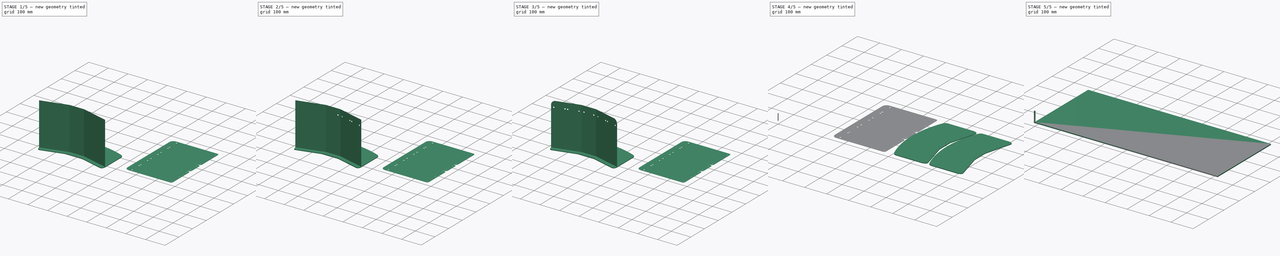
[diagram: build sequence overview — one tinted view per stage of 5, left to right]
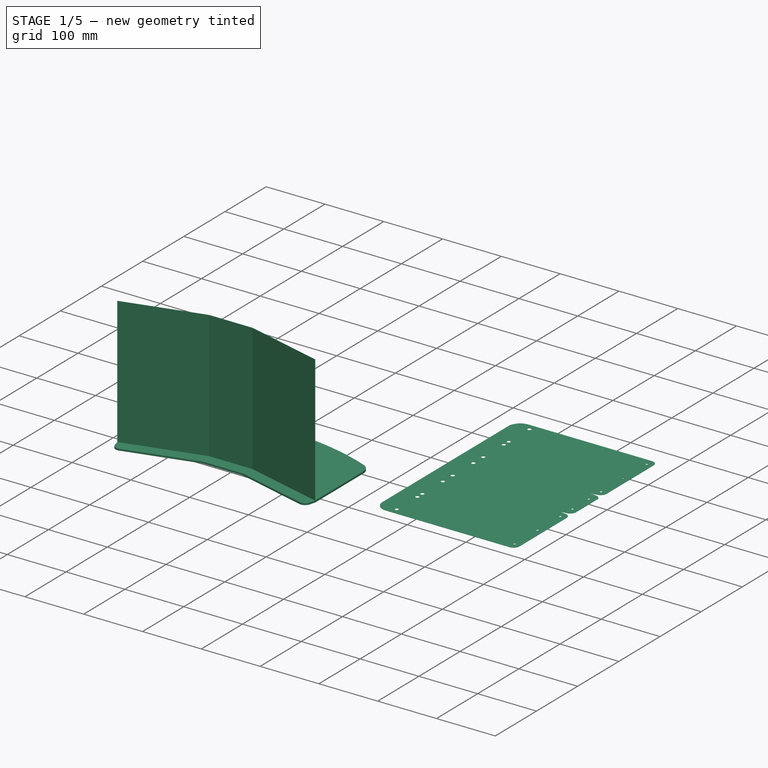
[diagram: stage 1 of 5 — iso view after this stage's code; geometry added in this stage tinted green]
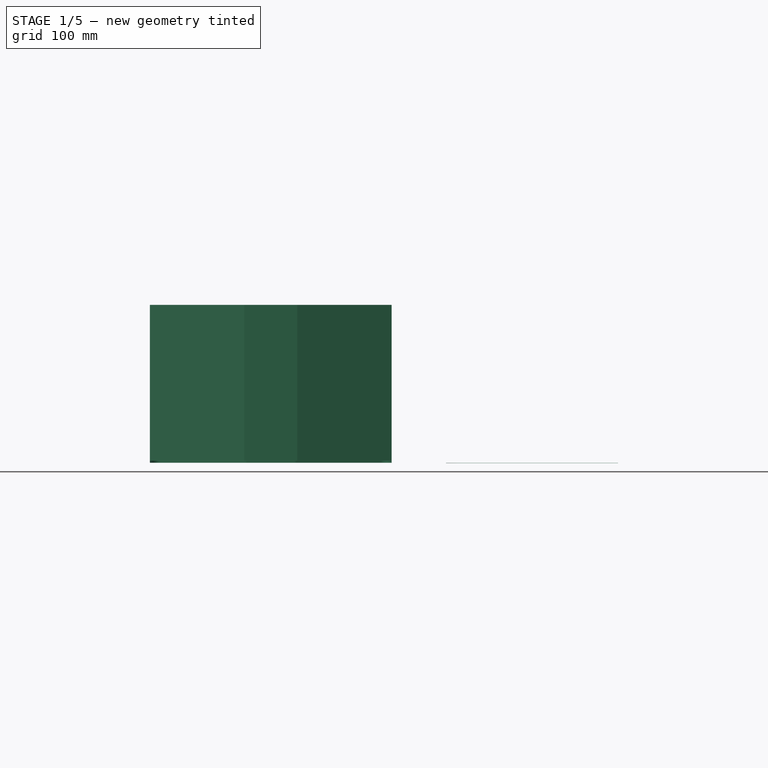
[diagram: stage 1 of 5 — front view after this stage's code; geometry added in this stage tinted green]
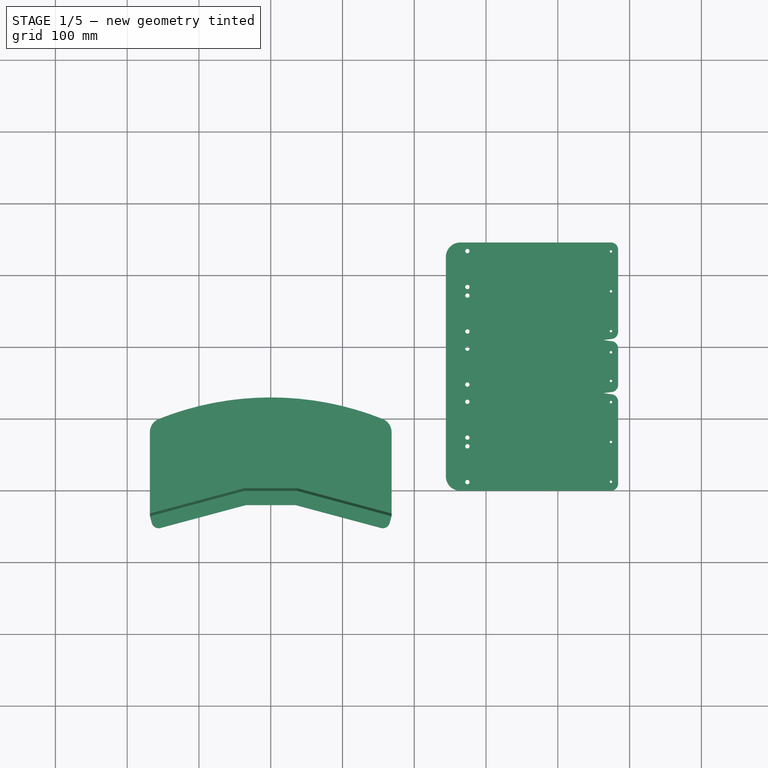
[diagram: stage 1 of 5 — top view after this stage's code; geometry added in this stage tinted green]
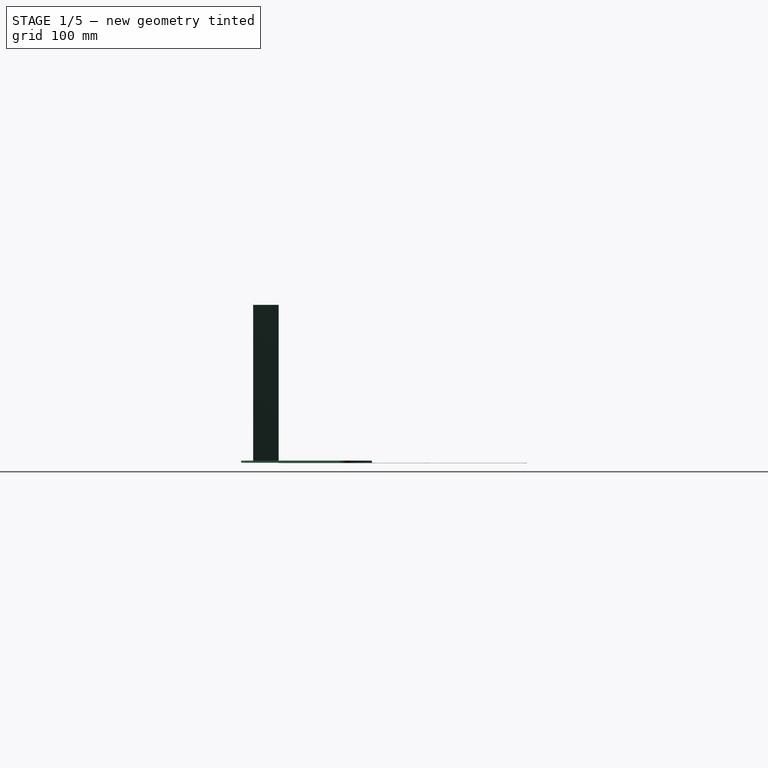
[diagram: stage 1 of 5 — right view after this stage's code; geometry added in this stage tinted green]
FCSTD DOCUMENT  (FreeCAD 0.21R31641 (Git))
Label: стойка-семена моя микрозелень
License: All rights reserved
LicenseURL: http://en.wikipedia.org/wiki/All_rights_reserved
objects: Sketcher::SketchObject×20, Part::FeaturePython×8, Path::FeaturePython×8, PartDesign::Pocket×7, App::DocumentObjectGroup×6, PartDesign::CoordinateSystem×4, PartDesign::Body×3, Part::Feature×3, PartDesign::FeaturePython×2, PartDesign::Mirrored×2, App::FeaturePython×2, Part::Part2DObjectPython×2, PartDesign::Fillet×1, PartDesign::SubShapeBinder×1, PartDesign::Pad×1, PartDesign::FeatureBase×1
note: 66 computed .brp shape members not serialized (recipe doc carries the construction recipe); baked Part::Feature solids carry a one-line shape summary decoded from their .brp

FEATURE [Sketcher::SketchObject] Sketch
  FullyConstrained = true
  MapMode = 5
  Support = -> [XY_Plane]
  expr: .Constraints.side_length = 50 * 2 + 12 * 3
  sketch-geometry (3):
    g0: LineSegment StartX=-37 StartY=0 StartZ=0 EndX=37 EndY=0 EndZ=0
    g1: LineSegment StartX=37 StartY=0 StartZ=0 EndX=168.366 EndY=-35.1994 EndZ=0
    g2: LineSegment StartX=-37 StartY=0 StartZ=0 EndX=-168.366 EndY=-35.1994 EndZ=0
  constraints (8):
    c: PointOnObject(g0,g-1)
    c: Coincident(g1,g0)
    c: Coincident(g2,g0)
    c: Symmetric(g1,g2,g-2)
    c: Symmetric(g0,g0,g-2)
    c: Distance(g1) = 136  'side_length'
    c: DistanceX(g0,g0) = 74  'mid_length'
    c: Angle(g-1,g1) = 2.87979
FEATURE [PartDesign::FeaturePython] BaseBend  # WARN: FeaturePython — macro-defined, semantics opaque (R4)
  BendSide = 0
  BendSketch = -> Sketch
  MidPlane = false
  Reverse = false
  length = 220
  radius = 0.1
  thickness = 0.3
FEATURE [PartDesign::Body] Body  label="Body_material_0.50ansi"
  Group = -> [Sketch,BaseBend,Bend,Sketch001,Pocket,Fillet,Sketch002,Local_CS,Local_CS001,Sketch004,Pocket001,Pocket002,Local_CS002,Local_CS003,Sketch005,Sketch006,Pocket003,Pocket004,Sketch007,Pocket005,Mirrored]
  Origin = -> Origin
  Tip = -> Mirrored
FEATURE [Sketcher::SketchObject] Sketch008
  FullyConstrained = true
  MapMode = 5
  Support = -> [XY_Plane001]
  expr: .Constraints.mid_length = Sketch.Constraints.mid_length
  expr: .Constraints.side_length = Sketch.Constraints.side_length
  expr: Constraints[7] = Sketch.Constraints[7]
  sketch-geometry (25):
    g0: LineSegment StartX=-37 StartY=0 StartZ=0 EndX=37 EndY=0 EndZ=0
    g1: LineSegment StartX=37 StartY=0 StartZ=0 EndX=168.366 EndY=-35.1994 EndZ=0
    g2: LineSegment StartX=-37 StartY=0 StartZ=0 EndX=-168.366 EndY=-35.1994 EndZ=0
    g3: LineSegment StartX=-168.366 StartY=-35.1994 StartZ=0 EndX=-165.778 EndY=-44.8586 EndZ=0
    g4: LineSegment StartX=-153.53 StartY=-51.9297 StartZ=0 EndX=-35.6386 EndY=-20.3407 EndZ=0
    g5: LineSegment StartX=35.6386 StartY=-20.3407 StartZ=0 EndX=153.53 EndY=-51.9297 EndZ=0
    g6: LineSegment StartX=165.778 StartY=-44.8586 StartZ=0 EndX=168.366 EndY=-35.1994 EndZ=0
    g7: LineSegment StartX=168.366 StartY=-35.1994 StartZ=0 EndX=168.366 EndY=81.487 EndZ=0
    g8: LineSegment StartX=-168.366 StartY=81.487 StartZ=0 EndX=-168.366 EndY=-35.1994 EndZ=0
    g9: LineSegment StartX=-33.0504 StartY=-20 StartZ=0 EndX=0 EndY=-20 EndZ=0
    g10: LineSegment StartX=0 StartY=-20 StartZ=0 EndX=33.0504 EndY=-20 EndZ=0
    g11: ArcOfCircle CenterX=-156.118 CenterY=-42.2705 CenterZ=0 NormalX=0 NormalY=0 NormalZ=1 AngleXU=0 Radius=10 StartAngle=3.40339 EndAngle=4.97419
    g12: GeomPoint X=-163.19 Y=-54.5179 Z=0
    g13: ArcOfCircle CenterX=-33.0504 CenterY=-30 CenterZ=0 NormalX=0 NormalY=0 NormalZ=1 AngleXU=0 Radius=10 StartAngle=1.5708 EndAngle=1.8326
    g14: GeomPoint X=-34.367 Y=-20 Z=0
    g15: ArcOfCircle CenterX=33.0504 CenterY=-30 CenterZ=0 NormalX=0 NormalY=0 NormalZ=1 AngleXU=0 Radius=10 StartAngle=1.309 EndAngle=1.5708
    g16: GeomPoint X=34.367 Y=-20 Z=0
    g17: ArcOfCircle CenterX=156.118 CenterY=-42.2705 CenterZ=0 NormalX=0 NormalY=0 NormalZ=1 AngleXU=0 Radius=10 StartAngle=4.45059 EndAngle=6.02139
    g18: GeomPoint X=163.19 Y=-54.5179 Z=0
    g19: ArcOfCircle CenterX=148.366 CenterY=81.487 CenterZ=0 NormalX=0 NormalY=0 NormalZ=1 AngleXU=0 Radius=20 StartAngle=0 EndAngle=1.19107
    g20: GeomPoint X=168.366 Y=130 Z=0
    g21: ArcOfCircle CenterX=-148.366 CenterY=81.487 CenterZ=0 NormalX=0 NormalY=0 NormalZ=1 AngleXU=0 Radius=20 StartAngle=1.95053 EndAngle=3.14159
    g22: ArcOfCircle CenterX=-6.08e-14 CenterY=-420.264 CenterZ=0 NormalX=0 NormalY=0 NormalZ=1 AngleXU=0 Radius=420.264 StartAngle=1.1586 EndAngle=1.98299
    g23: ArcOfCircle CenterX=0 CenterY=-290.264 CenterZ=0 NormalX=0 NormalY=0 NormalZ=1 AngleXU=0 Radius=420.264 StartAngle=1.19107 EndAngle=1.95053
    g24: GeomPoint X=0 Y=130 Z=0
  constraints (61):
    c: PointOnObject(g0,g-1)
    c: Coincident(g1,g0)
    c: Coincident(g2,g0)
    c: Symmetric(g1,g2,g-2)
    c: Symmetric(g0,g0,g-2)
    c: Distance(g1) = 136  'side_length'
    c: DistanceX(g0,g0) = 74  'mid_length'
    c: Angle(g-1,g1) = 2.87979
    c: Coincident(g2,g3)
    c: Coincident(g6,g1)
    c: Coincident(g6,g7)
    c: Vertical(g7)
    c: Coincident(g8,g3)
    c: Vertical(g8)
    c: DistanceY(g16) = -20
    c: Perpendicular(g1,g6)
    c: Perpendicular(g2,g3)
    c: Perpendicular(g4,g3)
    c: Perpendicular(g6,g5)
    c: Coincident(g9,g10)
    c: Horizontal(g9)
    c: Horizontal(g10)
    c: PointOnObject(g9,g-2)
    c: Distance(g6,g18) = 20
    c: PointOnObject(g12,g3)
    c: PointOnObject(g12,g4)
    c: Tangent(g3,g11) = -1.5708
    c: Tangent(g4,g11) = -1.5708
    c: PointOnObject(g14,g4)
    c: PointOnObject(g14,g9)
    c: Tangent(g4,g13) = 1.5708
    c: Tangent(g9,g13) = 1.5708
    c: PointOnObject(g16,g5)
    c: PointOnObject(g16,g10)
    c: Tangent(g5,g15) = 1.5708
    c: Tangent(g10,g15) = 1.5708
    c: PointOnObject(g18,g5)
    c: PointOnObject(g18,g6)
    c: Tangent(g5,g17) = -1.5708
    c: Tangent(g6,g17) = -1.5708
    c: Equal(g17,g15)
    c: Equal(g17,g13)
    c: Equal(g17,g11)
    c: Diameter(g17) = 20
    c: Equal(g9,g10)
    c: DistanceY(g20) = 130
    c: PointOnObject(g20,g7)
    c: Tangent(g7,g19) = -1.5708
    c: Tangent(g8,g21) = -1.5708
    c: Equal(g21,g19)
    c: Diameter(g21) = 40
    c: Coincident(g22,g3)
    c: Coincident(g22,g6)
    c: Tangent(g22,g0)
    c: PointOnObject(g23,g-2)
    c: Tangent(g23,g19) = -1.5708
    c: Tangent(g23,g21) = -1.5708
    c: Equal(g22,g23)
    c: PointOnObject(g24,g-2)
    c: PointOnObject(g24,g23)
    c: DistanceY(g24) = 130
FEATURE [PartDesign::SubShapeBinder] Binder
  BindCopyOnChange = 0
  BindMode = 0
  ClaimChildren = false
  Context = -> Body001 [Binder.]
  Fuse = false
  MakeFace = true
  OffsetFill = false
  OffsetIntersection = false
  OffsetJoinType = 0
  OffsetOpenResult = false
  PartialLoad = false
  Relative = true
  Support = -> [Body[Pocket003.Sketch005.,Pocket004.Sketch006.]]
  _Version = 2
FEATURE [PartDesign::Pad] Pad
  Direction = (0,0,1)
  Length = 3
  Length2 = 10
  Profile = -> Sketch008
  ReferenceAxis = -> Sketch008 [N_Axis]
  Type = 0
FEATURE [Part::Feature] Unfold002
  shape: bbox 345.9 x 240 x 0.3364 mm, 44 faces (baked)
FEATURE [PartDesign::FeatureBase] BaseFeature
  BaseFeature = -> Unfold002
  Placement = pos=(0,0,0) rot=(0,0,1;1.5708rad)
FEATURE [Part::FeaturePython] Clone003  label="Model-Body004"  # Draft clone (typed FeaturePython)
  AttacherType = Attacher::AttachEngine3D
  Fuse = false
  Objects = -> [Body002]
  PathResource = Model
  Placement = pos=(464,172.96,0) rot=(0,0,1;0rad)
  Scale = (1,1,1)
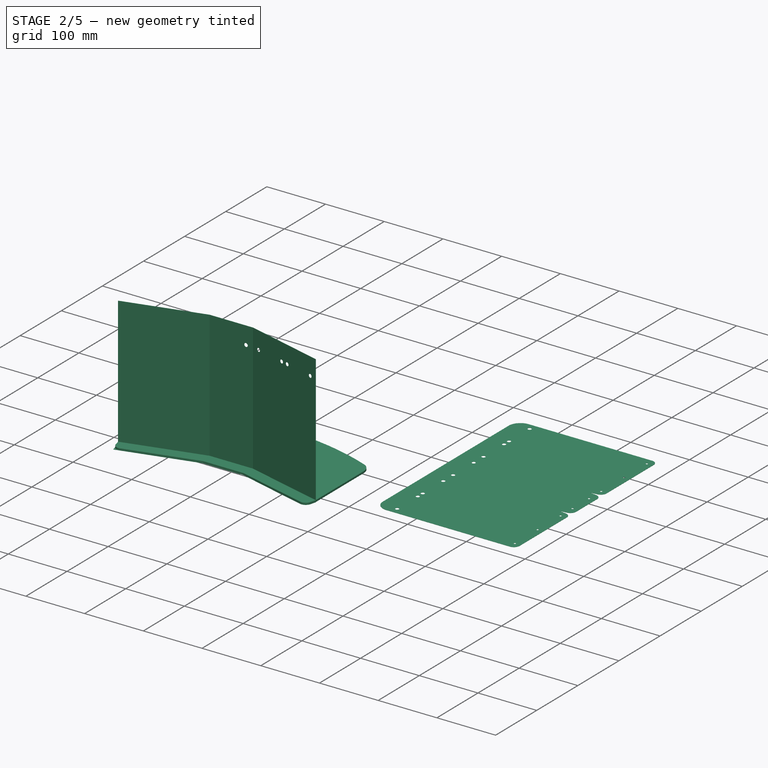
[diagram: stage 2 of 5 — iso view after this stage's code; geometry added in this stage tinted green]
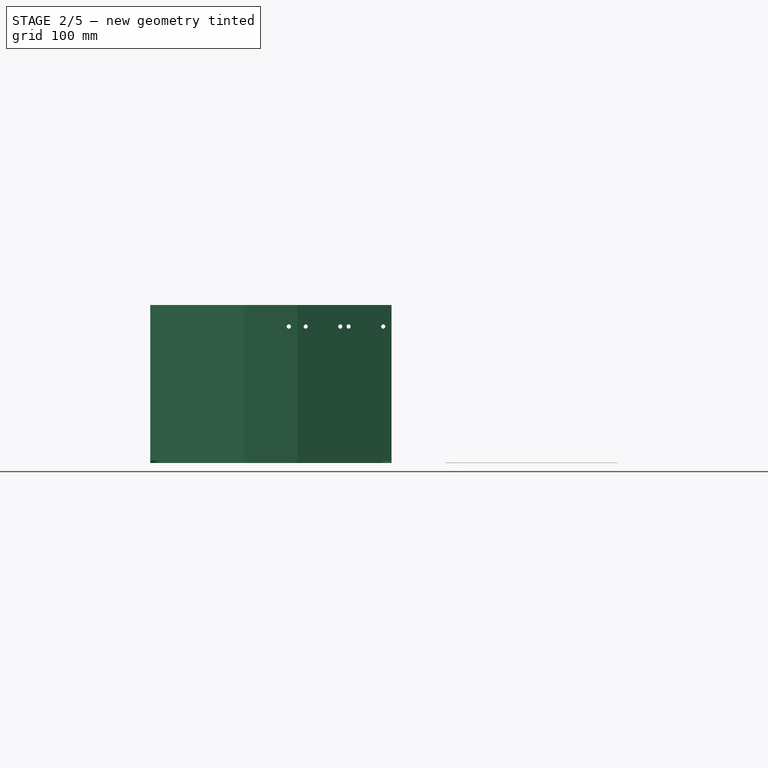
[diagram: stage 2 of 5 — front view after this stage's code; geometry added in this stage tinted green]
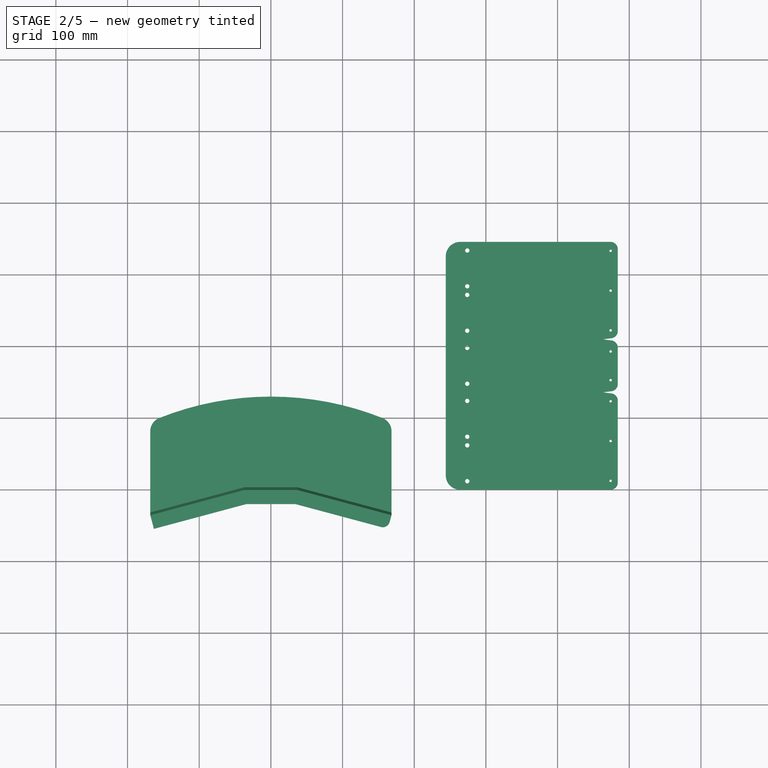
[diagram: stage 2 of 5 — top view after this stage's code; geometry added in this stage tinted green]
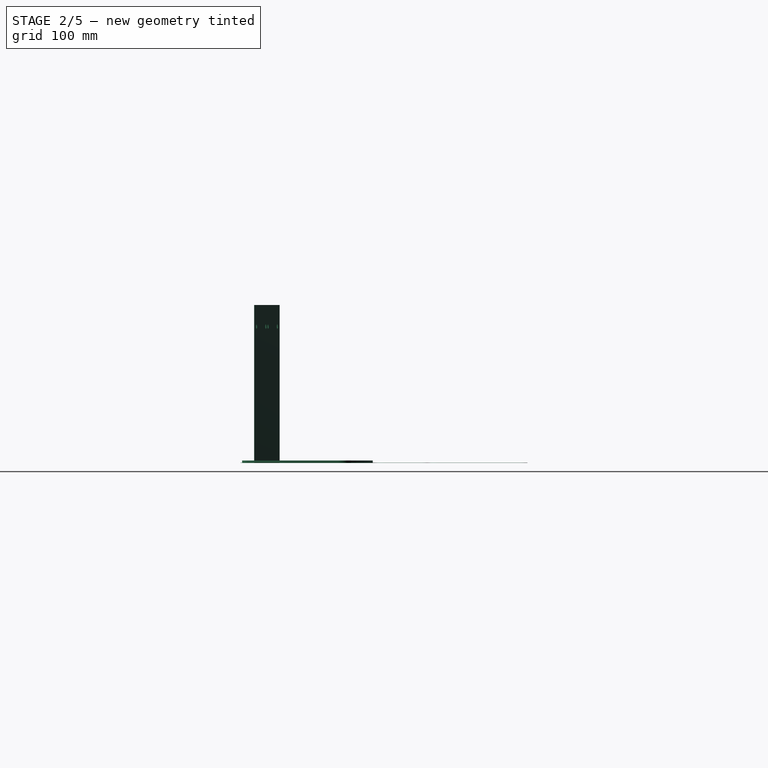
[diagram: stage 2 of 5 — right view after this stage's code; geometry added in this stage tinted green]
FEATURE [PartDesign::FeaturePython] Bend  # WARN: FeaturePython — macro-defined, semantics opaque (R4)
  AutoMiter = false
  BaseFeature = -> BaseBend
  BendType = 0
  LengthList = [20]
  LengthSpec = 1
  ReliefFactor = 0.7
  UseReliefFactor = false
  angle = 90
  baseObject = -> BaseBend [Edge32,Edge16,Edge3]
  bendAList = [90]
  extend1 = 0
  extend2 = 0
  gap1 = 0
  gap2 = 0
  invert = false
  kfactor = 0.5
  length = 20
  maxExtendDist = 5
  minGap = 0.1
  minReliefGap = 1
  miterangle1 = 0
  miterangle2 = 0
  offset = 0
  radius = 0.1
  reliefType = 0
  reliefd = 1
  reliefw = 0.8
  sketchflip = false
  sketchinvert = false
  unfold = false
FEATURE [Sketcher::SketchObject] Sketch001
  FullyConstrained = true
  MapMode = 5
  Support = -> [XY_Plane]
  expr: Constraints[5] = Sketch.Constraints.side_length
  expr: Constraints[6] = Sketch.Constraints.mid_length
  expr: Constraints[7] = Sketch.Constraints[7]
  sketch-geometry (12):
    g0: LineSegment StartX=-37 StartY=0 StartZ=0 EndX=37 EndY=0 EndZ=0
    g1: LineSegment StartX=37 StartY=0 StartZ=0 EndX=168.366 EndY=-35.1994 EndZ=0
    g2: LineSegment StartX=-37 StartY=0 StartZ=0 EndX=-168.366 EndY=-35.1994 EndZ=0
    g3: LineSegment StartX=33.9261 StartY=-24.1151 StartZ=0 EndX=37.0974 EndY=-0.0261052 EndZ=0
    g4: LineSegment StartX=36.8991 StartY=0 StartZ=0 EndX=33.7278 EndY=-24.089 EndZ=0
    g5: LineSegment StartX=33.7278 StartY=-24.089 StartZ=0 EndX=33.8269 EndY=-24.102 EndZ=0
    g6: LineSegment StartX=33.8269 StartY=-24.102 StartZ=0 EndX=33.9261 EndY=-24.1151 EndZ=0
    g7: LineSegment StartX=33.8269 StartY=0 StartZ=0 EndX=33.8269 EndY=-24.102 EndZ=0
    g8: LineSegment StartX=33.8269 StartY=-24.102 StartZ=0 EndX=40.065 EndY=-0.821257 EndZ=0
    g9: LineSegment StartX=37 StartY=0 StartZ=0 EndX=33.8269 EndY=-24.102 EndZ=0
    g10: LineSegment StartX=37.0974 StartY=-0.0261052 StartZ=0 EndX=37 EndY=0 EndZ=0
    g11: LineSegment StartX=37 StartY=0 StartZ=0 EndX=36.8991 EndY=0 EndZ=0
  constraints (34):
    c: PointOnObject(g0,g-1)
    c: Coincident(g1,g0)
    c: Coincident(g2,g0)
    c: Symmetric(g1,g2,g-2)
    c: Symmetric(g0,g0,g-2)
    c: Distance(g1) = 136
    c: DistanceX(g0,g0) = 74
    c: Angle(g-1,g1) = 2.87979
    c: Coincident(g6,g3)
    c: Coincident(g3,g10)
    c: Coincident(g11,g4)
    c: Coincident(g4,g5)
    c: Parallel(g3,g4)
    c: Coincident(g5,g6)
    c: Perpendicular(g3,g5)
    c: Equal(g5,g6)
    c: PointOnObject(g7,g0)
    c: Coincident(g7,g5)
    c: Coincident(g8,g5)
    c: PointOnObject(g8,g1)
    c: Perpendicular(g1,g8)
    c: Perpendicular(g0,g7)
    c: Equal(g8,g7)
    c: Coincident(g9,g0)
    c: Coincident(g9,g5)
    c: Parallel(g3,g9)
    c: Coincident(g10,g11)
    c: Distance(g10,g11) = 0.2
    c: Parallel(g11,g0)
    c: Parallel(g10,g1)
    c: PointOnObject(g10,g9)
    c: Distance(g9) = 24.31
    c: Parallel(g6,g5)
    c: PointOnObject(g10,g0)
FEATURE [PartDesign::Pocket] Pocket
  BaseFeature = -> Bend
  Direction = (0,0,-1)
  Length = 0.1
  Length2 = 0.1
  Profile = -> Sketch001
  ReferenceAxis = -> Sketch001 [N_Axis]
  Refine = true
  Type = 1
FEATURE [PartDesign::Fillet] Fillet
  Base = -> Pocket [Edge4,Edge46,Edge2]
  BaseFeature = -> Pocket
  Radius = 10
  SupportTransform = false
  UseAllEdges = false
FEATURE [Sketcher::SketchObject] Sketch002
  AttachmentOffset = pos=(0,190,0) rot=(0,0,1;0rad)
  FullyConstrained = true
  MapMode = 5
  Placement = pos=(0,4.22e-14,190) rot=(1,0,0;1.5708rad)
  Support = -> [XZ_Plane]
  sketch-geometry (1):
    g0: Circle CenterX=25 CenterY=0 CenterZ=0 NormalX=0 NormalY=0 NormalZ=1 AngleXU=0 Radius=3
  constraints (3):
    c: PointOnObject(g0,g-1)
    c: DistanceX(g0) = 25
    c: Diameter(g0) = 6
FEATURE [PartDesign::CoordinateSystem] Local_CS
  AttacherType = Attacher::AttachEngine3D
  AttachmentOffset = pos=(37,0,0) rot=(0,0,1;-0.261799rad)
  MapMode = 5
  Placement = pos=(37,0,0) rot=(0,0,1;6.02139rad)
  Support = -> [XY_Plane]
  expr: .AttachmentOffset.Base.x = Sketch.Constraints.mid_length / 2
  expr: .AttachmentOffset.Rotation.Angle = Sketch.Constraints[7] - 180°
FEATURE [PartDesign::CoordinateSystem] Local_CS001
  AttacherType = Attacher::AttachEngine3D
  AttachmentOffset = pos=(68,0,0) rot=(1,0,0;1.5708rad)
  MapMode = 5
  Placement = pos=(102.683,-17.5997,0) rot=(0.983106,-0.129428,-0.129428;1.58783rad)
  Support = -> [Local_CS]
  expr: .AttachmentOffset.Base.x = Sketch.Constraints.side_length / 2
FEATURE [Sketcher::SketchObject] Sketch004
  AttachmentOffset = pos=(0,190,0) rot=(0,0,1;0rad)
  FullyConstrained = true
  MapMode = 5
  Placement = pos=(102.683,-17.5997,190) rot=(0.983106,-0.129428,-0.129428;1.58783rad)
  Support = -> [Local_CS001]
  expr: AttachmentOffset = Sketch002.AttachmentOffset
  sketch-geometry (4):
    g0: Circle CenterX=6 CenterY=0 CenterZ=0 NormalX=0 NormalY=0 NormalZ=1 AngleXU=0 Radius=3
    g1: Circle CenterX=56 CenterY=0 CenterZ=0 NormalX=0 NormalY=0 NormalZ=1 AngleXU=0 Radius=3
    g2: Circle CenterX=-6 CenterY=0 CenterZ=0 NormalX=0 NormalY=0 NormalZ=1 AngleXU=0 Radius=3
    g3: Circle CenterX=-56 CenterY=0 CenterZ=0 NormalX=0 NormalY=0 NormalZ=1 AngleXU=0 Radius=3
  constraints (10):
    c: PointOnObject(g0,g-1)
    c: PointOnObject(g1,g-1)
    c: Symmetric(g2,g0,g-2)
    c: Symmetric(g3,g1,g-2)
    c: DistanceX(g2,g0) = 12
    c: DistanceX(g0,g1) = 50
    c: Equal(g3,g2)
    c: Equal(g3,g0)
    c: Equal(g3,g1)
    c: Diameter(g3) = 6
FEATURE [PartDesign::Pocket] Pocket001
  BaseFeature = -> Fillet
  Direction = (0,1,-2e-16)
  Length = 5
  Length2 = 5
  Midplane = true
  Profile = -> Sketch002
  ReferenceAxis = -> Sketch002 [N_Axis]
  Type = 1
FEATURE [PartDesign::Pocket] Pocket002
  BaseFeature = -> Pocket001
  Direction = (0.258819,0.965926,-2e-16)
  Length = 5
  Length2 = 5
  Midplane = true
  Profile = -> Sketch004
  ReferenceAxis = -> Sketch004 [N_Axis]
  Type = 1
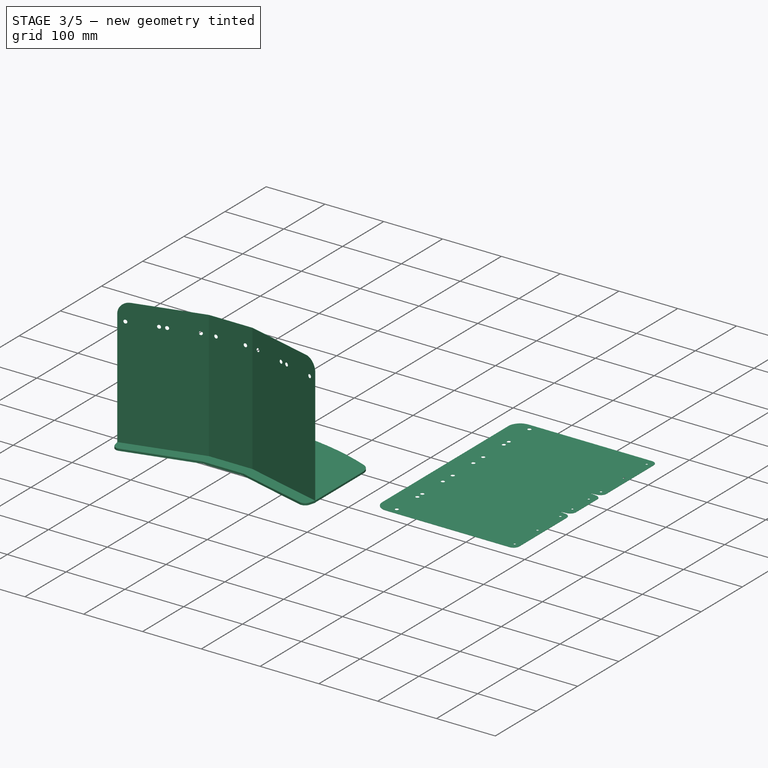
[diagram: stage 3 of 5 — iso view after this stage's code; geometry added in this stage tinted green]
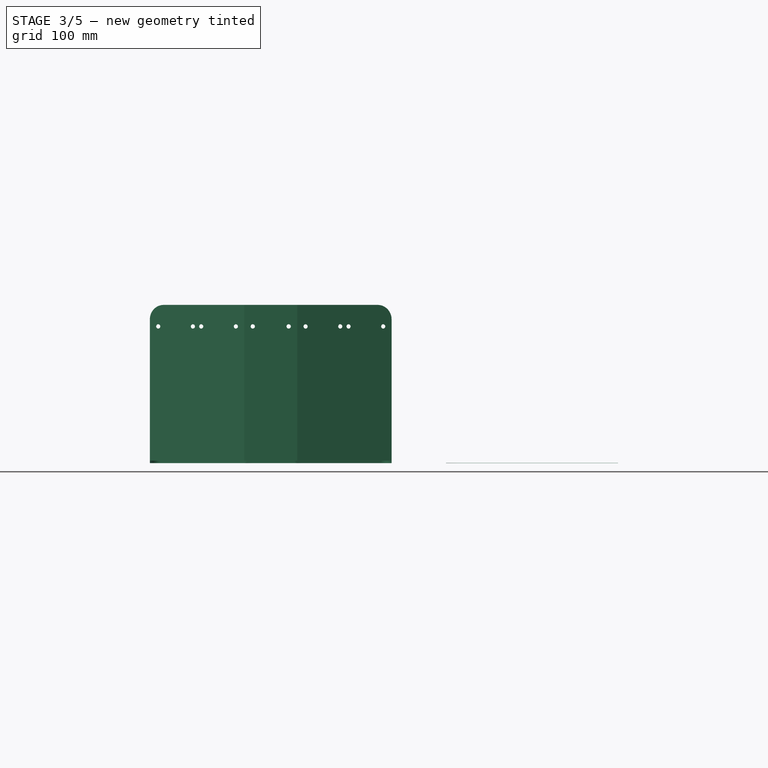
[diagram: stage 3 of 5 — front view after this stage's code; geometry added in this stage tinted green]
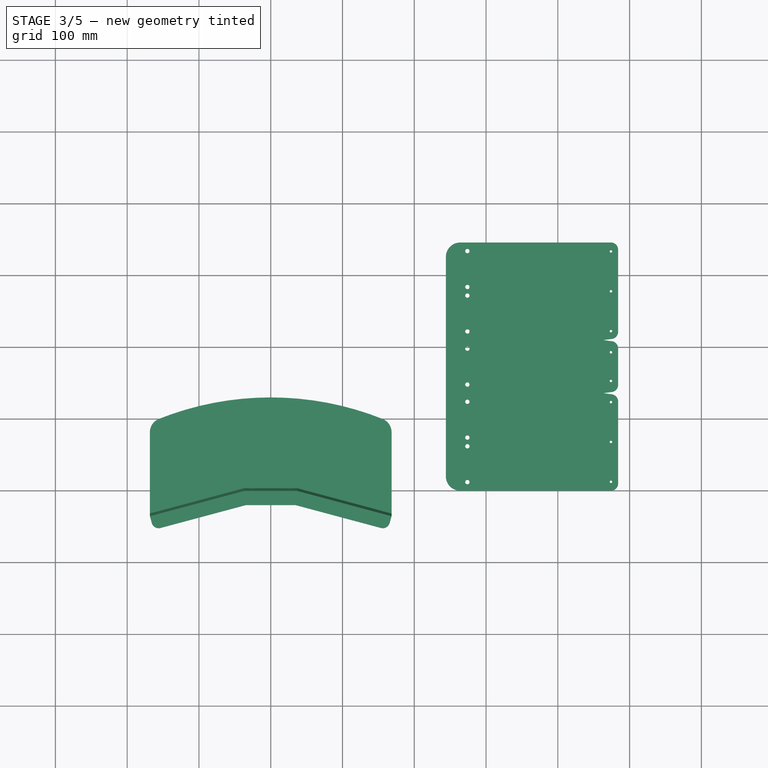
[diagram: stage 3 of 5 — top view after this stage's code; geometry added in this stage tinted green]
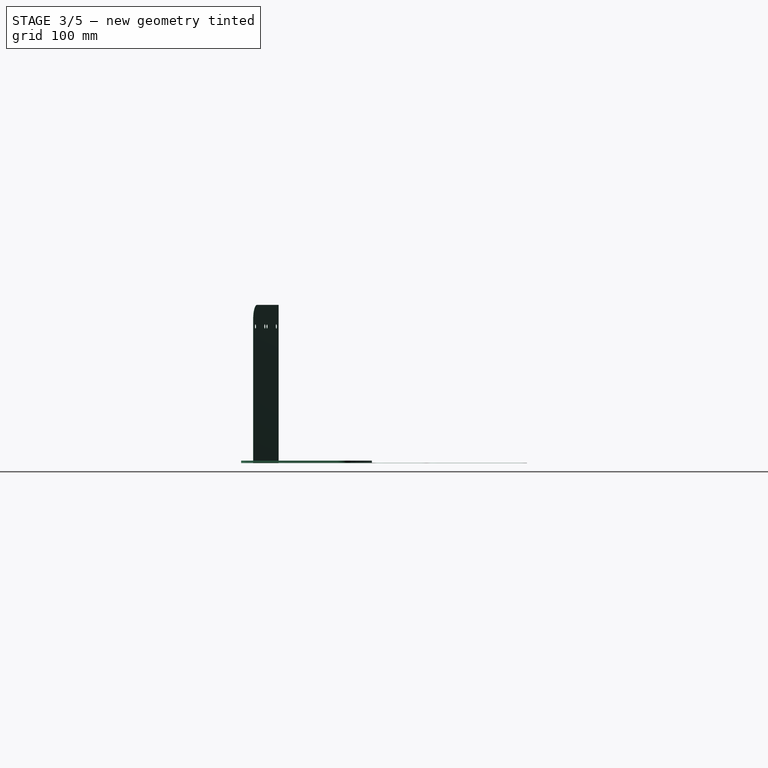
[diagram: stage 3 of 5 — right view after this stage's code; geometry added in this stage tinted green]
FEATURE [PartDesign::CoordinateSystem] Local_CS002
  AttacherType = Attacher::AttachEngine3D
  AttachmentOffset = pos=(68,0,0) rot=(0,0,1;3.14159rad)
  MapMode = 5
  Placement = pos=(102.683,-17.5997,0) rot=(0,0,1;2.87979rad)
  Support = -> [Local_CS]
  expr: .AttachmentOffset.Base.x = Sketch.Constraints.side_length / 2
FEATURE [PartDesign::CoordinateSystem] Local_CS003
  AttacherType = Attacher::AttachEngine3D
  AttachmentOffset = pos=(0,0,0) rot=(0,0,1;3.14159rad)
  MapMode = 5
  Placement = pos=(0,0,0) rot=(0,0,1;3.14159rad)
  Support = -> [XY_Plane]
FEATURE [Sketcher::SketchObject] Sketch005
  FullyConstrained = true
  MapMode = 5
  Placement = pos=(0,0,0) rot=(0,0,1;3.14159rad)
  Support = -> [Local_CS003]
  sketch-geometry (2):
    g0: Circle CenterX=20 CenterY=10 CenterZ=0 NormalX=0 NormalY=0 NormalZ=1 AngleXU=0 Radius=1.7
    g1: Circle CenterX=-20 CenterY=10 CenterZ=0 NormalX=0 NormalY=0 NormalZ=1 AngleXU=0 Radius=1.7
  constraints (5):
    c: Symmetric(g1,g0,g-2)
    c: DistanceY(g0) = 10
    c: Equal(g0,g1)
    c: Diameter(g0) = 3.4
    c: DistanceX(g1,g0) = 40
FEATURE [Sketcher::SketchObject] Sketch006
  FullyConstrained = true
  MapMode = 5
  Placement = pos=(102.683,-17.5997,0) rot=(0,0,1;2.87979rad)
  Support = -> [Local_CS002]
  expr: Constraints[5] = Sketch.Constraints.side_length - 25mm
  sketch-geometry (3):
    g0: Circle CenterX=-1.7e-15 CenterY=10 CenterZ=0 NormalX=0 NormalY=0 NormalZ=1 AngleXU=0 Radius=1.7
    g1: Circle CenterX=55.5 CenterY=10 CenterZ=0 NormalX=0 NormalY=0 NormalZ=1 AngleXU=0 Radius=1.7
    g2: Circle CenterX=-55.5 CenterY=10 CenterZ=0 NormalX=0 NormalY=0 NormalZ=1 AngleXU=0 Radius=1.7
  constraints (8):
    c: PointOnObject(g0,g-2)
    c: Symmetric(g2,g1,g0)
    c: Equal(g1,g0)
    c: Equal(g1,g2)
    c: Diameter(g1) = 3.4
    c: DistanceX(g2,g1) = 111
    c: DistanceY(g0) = 10
    c: Horizontal(g0,g1)
FEATURE [PartDesign::Pocket] Pocket003
  BaseFeature = -> Pocket002
  Direction = (0,0,-1)
  Length = 5
  Length2 = 5
  Profile = -> Sketch005
  ReferenceAxis = -> Sketch005 [N_Axis]
  Type = 0
FEATURE [PartDesign::Pocket] Pocket004
  BaseFeature = -> Pocket003
  Direction = (0,0,-1)
  Length = 5
  Length2 = 5
  Profile = -> Sketch006
  ReferenceAxis = -> Sketch006 [N_Axis]
  Type = 0
FEATURE [Sketcher::SketchObject] Sketch007
  AttachmentOffset = pos=(68,220,0) rot=(0,0,1;0rad)
  FullyConstrained = true
  MapMode = 5
  Placement = pos=(168.366,-35.1994,220) rot=(0.983106,-0.129428,-0.129428;1.58783rad)
  Support = -> [Local_CS001]
  expr: .AttachmentOffset.Base.x = Sketch.Constraints.side_length / 2
  expr: .AttachmentOffset.Base.y = BaseBend.length
  sketch-geometry (3):
    g0: ArcOfCircle CenterX=-20 CenterY=-20 CenterZ=0 NormalX=0 NormalY=0 NormalZ=1 AngleXU=0 Radius=20 StartAngle=0 EndAngle=1.57079
    g1: LineSegment StartX=0 StartY=-20 StartZ=0 EndX=0 EndY=-7.33245e-11 EndZ=0
    g2: LineSegment StartX=0 StartY=-7.33245e-11 StartZ=0 EndX=-19.9999 EndY=-7.33245e-11 EndZ=0
  constraints (9):
    c: PointOnObject(g0,g-1)
    c: PointOnObject(g0,g-2)
    c: Coincident(g1,g2)
    c: Coincident(g2,g0)
    c: Tangent(g2,g0)
    c: Tangent(g0,g1) = -1.5708
    c: Vertical(g1)
    c: Horizontal(g2)
    c: Diameter(g0) = 40
FEATURE [PartDesign::Pocket] Pocket005
  BaseFeature = -> Pocket004
  Direction = (0.258819,0.965926,-2e-16)
  Length = 5
  Length2 = 5
  Midplane = true
  Profile = -> Sketch007
  ReferenceAxis = -> Sketch007 [N_Axis]
  Type = 1
FEATURE [PartDesign::Mirrored] Mirrored
  BaseFeature = -> Pocket005
  MirrorPlane = -> YZ_Plane
  Originals = -> [Pocket,Fillet,Pocket001,Pocket002,Pocket004,Pocket005]
  Refine = true
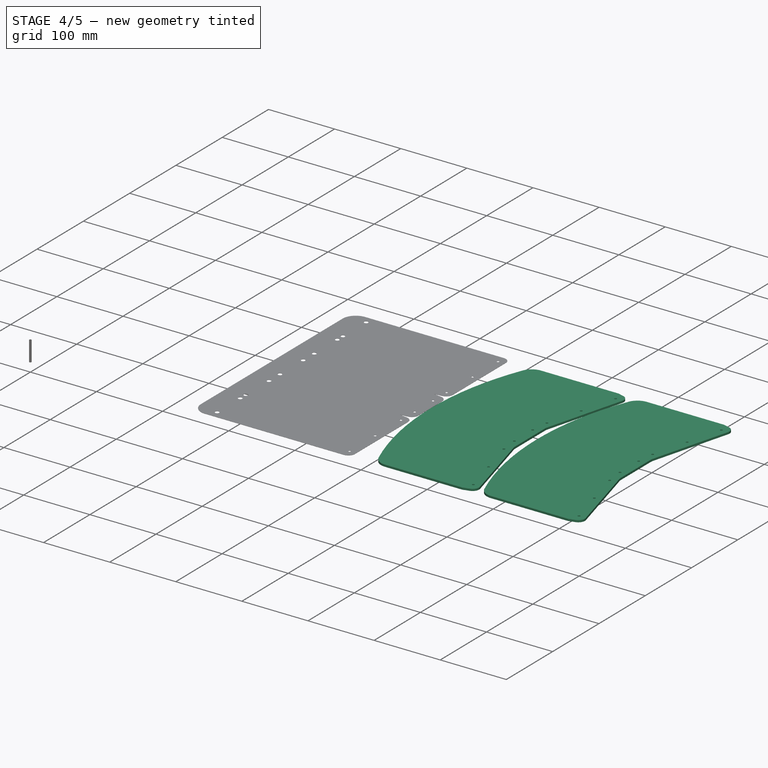
[diagram: stage 4 of 5 — iso view after this stage's code; geometry added in this stage tinted green]
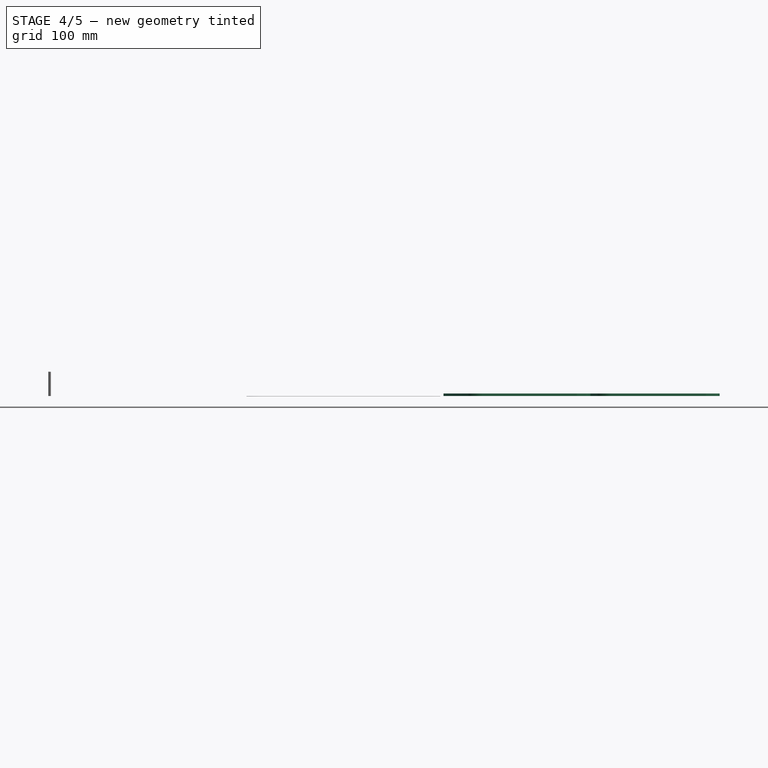
[diagram: stage 4 of 5 — front view after this stage's code; geometry added in this stage tinted green]
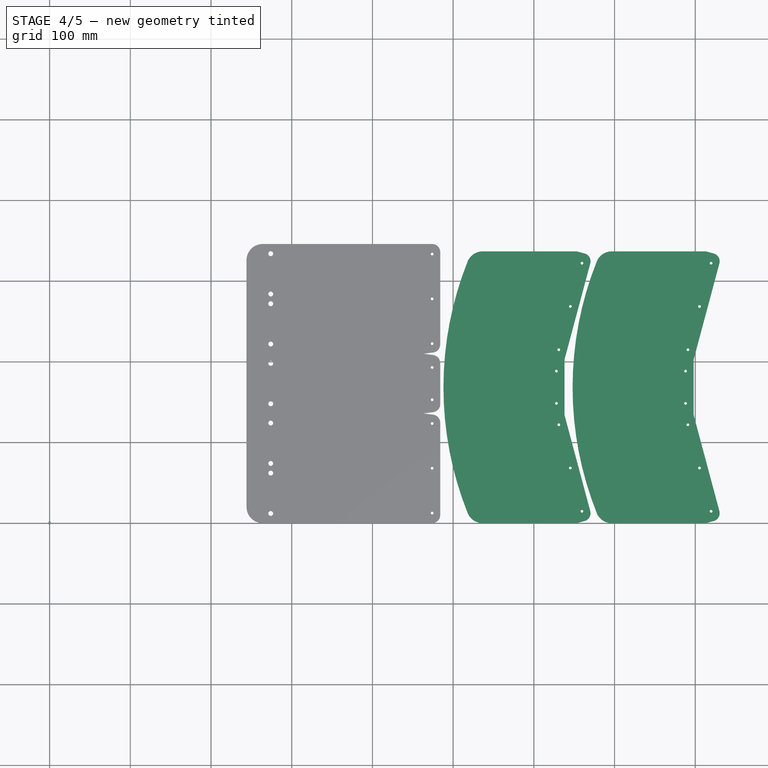
[diagram: stage 4 of 5 — top view after this stage's code; geometry added in this stage tinted green]
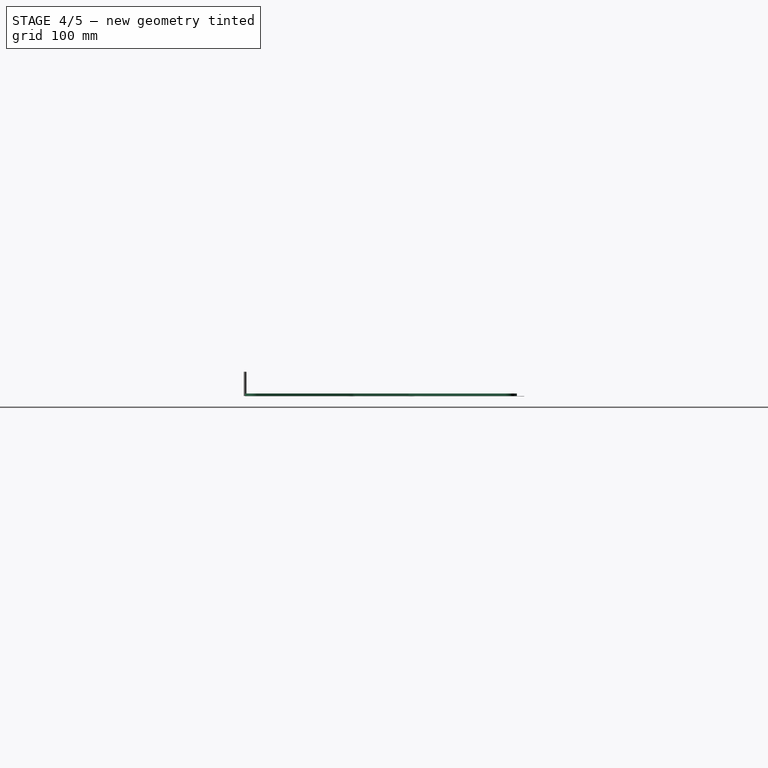
[diagram: stage 4 of 5 — right view after this stage's code; geometry added in this stage tinted green]
FEATURE [PartDesign::Pocket] Pocket006
  BaseFeature = -> Pad
  Direction = (0,0,-1)
  Length = 5
  Length2 = 5
  Midplane = true
  Profile = -> Binder
  Type = 1
FEATURE [PartDesign::Mirrored] Mirrored001
  BaseFeature = -> Pocket006
  MirrorPlane = -> YZ_Plane001
  Originals = -> [Pocket006]
FEATURE [Path::FeaturePython] NZV6109015  label="NZV6109016"  # Path/CAM operation (typed FeaturePython)
  HorizFeed = 51.6667
  HorizRapid = 0
  SpindleDir = 0
  SpindleSpeed = 18000
  Tool = -> ToolBit
  ToolNumber = 2
  VertFeed = 16.6667
  VertRapid = 0
  expr: HorizRapid = SetupSheet.HorizRapid
  expr: VertRapid = SetupSheet.VertRapid
FEATURE [App::DocumentObjectGroup] Tools
  Group = -> [NZV6109015]
FEATURE [Path::FeaturePython] Engrave  # Path/CAM operation (typed FeaturePython)
  Active = true
  ClearanceHeight = 6.4
  CoolantMode = 0
  CycleTime = 00:01:16
  FinalDepth = 0.6
  OpFinalDepth = -9.6
  OpStartDepth = 0.4
  OpStockZMax = 1.4
  OpStockZMin = 0
  OpToolDiameter = 10
  SafeHeight = 4.4
  StartDepth = 3
  StartVertex = 0
  StepDown = 10
  ToolController = -> NZV6109015
  expr: ClearanceHeight = OpStockZMax + SetupSheet.ClearanceHeightOffset
  expr: FinalDepth = 0.6mm
  expr: SafeHeight = OpStockZMax + SetupSheet.SafeHeightOffset
  expr: StartDepth = 3mm
  expr: StepDown = OpToolDiameter
FEATURE [App::DocumentObjectGroup] Operations
  Group = -> [Engrave]
FEATURE [App::FeaturePython] SetupSheet001  # Path/CAM operation (typed FeaturePython)
  ClearanceHeightExpression = OpStockZMax+SetupSheet001.ClearanceHeightOffset
  ClearanceHeightOffset = 5
  CoolantMode = 0
  CoolantModes = None | Flood | Mist
  FinalDepthExpression = -0.1 mm
  HorizRapid = 0
  ProfileDirection = 1
  ProfileSide = 0
  ProfileUseComp = true
  ProfileprocessCircles = true
  ProfileprocessHoles = true
  ProfileprocessPerimeter = true
  SafeHeightExpression = OpStockZMax+SetupSheet001.SafeHeightOffset
  SafeHeightOffset = 3
  StartDepthExpression = 3 mm
  StepDownExpression = 4 mm
  VertRapid = 0
FEATURE [Part::FeaturePython] ToolBit001  label="3.175mm Endmill"  # Path/CAM toolbit (typed FeaturePython)
  BitPropertyNames = Chipload | CuttingEdgeHeight | Diameter | Flutes | Length | Material | ShankDiameter | SpindleDirection
  BitShape = <path>
  Chipload = 0
  CuttingEdgeHeight = 30
  Diameter = 3.17
  Flutes = 0
  Length = 10
  Material = 0
  ShankDiameter = 3
  ShapeName = endmill
  SpindleDirection = 0
FEATURE [Path::FeaturePython] __175mm_Endmill  label="3.175mm Endmill001"  # Path/CAM operation (typed FeaturePython)
  HorizFeed = 33.3333
  HorizRapid = 0
  SpindleDir = 0
  SpindleSpeed = 18000
  Tool = -> ToolBit001
  ToolNumber = 1
  VertFeed = 8.33333
  VertRapid = 0
  expr: HorizRapid = SetupSheet001.HorizRapid
  expr: VertRapid = SetupSheet001.VertRapid
FEATURE [App::DocumentObjectGroup] Tools001
  Group = -> [__175mm_Endmill]
FEATURE [Path::FeaturePython] Profile001  # Path/CAM operation (typed FeaturePython)
  Active = true
  AreaParams:
    Tolerance = 1e-07
    FitArcs = True
    Simplify = False
    CleanDistance = 0.0
    Accuracy = 0.01
    Unit = 1.0
    MinArcPoints = 4
    MaxArcPoints = 100
    ClipperScale = 10000000.0
    Fill = 0
    Coplanar = 0
    Reorient = True
    Outline = False
    Explode = False
    OpenMode = 0
    Deflection = 0.01
    SubjectFill = 0
    ClipFill = 0
    Offset = 1.585
    ExtraPass = 0
    Stepover = 0.0
    LastStepover = 0.0
    JoinType = 0
    EndType = 0
    MiterLimit = 2.0
    RoundPrecision = 0.0
    PocketMode = 0
    ToolRadius = 1.0
    PocketExtraOffset = 0.0
    PocketStepover = 0.0
    PocketLastStepover = 0.0
    FromCenter = False
    Angle = 45.0
    AngleShift = 0.0
    Shift = 0.0
    Thicken = False
    SectionCount = -1
    Stepdown = 1.0
    SectionOffset = 0.0
    SectionTolerance = 1e-07
    SectionMode = 2
    Project = False
  ClearanceHeight = 9.4
  CoolantMode = 0
  CycleTime = 00:02:34
  Direction = 1
  FinalDepth = -0.1
  HandleMultipleFeatures = 0
  JoinType = 0
  MiterLimit = 0.1
  OffsetExtra = 0
  OpFinalDepth = 0
  OpStartDepth = 4.4
  OpStockZMax = 4.4
  OpStockZMin = 0
  OpToolDiameter = 3.17
  PathParams = {'orientation': 0, 'feedrate': 33.333333333333336, 'feedrate_v': 8.333333333333334, 'verbose': True, 'resume_height': 7.400000000000123, 'retraction': 9.400000000000123, 'return_end': True, 'preamble': False, 'start': Vector (499.6729189769878, 273.29830882422533, 9.400000000000123)}
  SafeHeight = 7.4
  Side = 0
  SplitArcs = false
  StartDepth = 3
  StartPoint = (0,0,0)
  StepDown = 4
  ToolController = -> __175mm_Endmill
  UseComp = true
  UseStartPoint = false
  processCircles = true
  processHoles = true
  processPerimeter = true
  expr: ClearanceHeight = OpStockZMax + SetupSheet001.ClearanceHeightOffset
  expr: FinalDepth = -0.1mm
  expr: SafeHeight = OpStockZMax + SetupSheet001.SafeHeightOffset
  expr: StartDepth = 3mm
  expr: StepDown = 4mm
FEATURE [Path::FeaturePython] DressupDogbone  # Path/CAM operation (typed FeaturePython)
  Base = -> Profile001
  Custom = 10
  Incision = 0
  Side = 0
  Style = 0
FEATURE [Part::Feature] Unfold001
  shape: bbox 445.9 x 240 x 0.3384 mm, 44 faces (baked)
FEATURE [Sketcher::SketchObject] Unfold_Sketch001
  FullyConstrained = false
  sketch-geometry (42):
    g0: ArcOfCircle CenterX=10 CenterY=212.96 CenterZ=0 NormalX=0 NormalY=0 NormalZ=1 AngleXU=-1.309 Radius=10 StartAngle=1.309 EndAngle=2.87979
    g1: LineSegment StartX=20 StartY=48.4638 StartZ=0 EndX=20 EndY=212.96 EndZ=0
    g2: ArcOfCircle CenterX=10 CenterY=48.4638 CenterZ=0 NormalX=0 NormalY=0 NormalZ=1 AngleXU=-2.87979 Radius=10 StartAngle=1.4399 EndAngle=2.87979
    g3: LineSegment StartX=0.4 StartY=37.1137 StartZ=0 EndX=11.3053 EndY=38.5494 EndZ=0
    g4: BSplineCurve PolesCount=15 KnotsCount=13 Degree=3 IsPeriodic=0
    g5: BSplineCurve PolesCount=15 KnotsCount=13 Degree=3 IsPeriodic=0
    g6: LineSegment StartX=0.4 StartY=-36.8465 StartZ=0 EndX=11.3053 EndY=-35.4108 EndZ=0
    g7: ArcOfCircle CenterX=10 CenterY=-25.4963 CenterZ=0 NormalX=0 NormalY=0 NormalZ=1 AngleXU=0 Radius=10 StartAngle=4.84329 EndAngle=6.28319
    g8: BSplineCurve PolesCount=15 KnotsCount=13 Degree=3 IsPeriodic=0
    g9: LineSegment StartX=11.3053 StartY=35.4108 StartZ=0 EndX=0.4 EndY=36.8465 EndZ=0
    g10: ArcOfCircle CenterX=10 CenterY=25.4963 CenterZ=0 NormalX=0 NormalY=0 NormalZ=1 AngleXU=2e-16 Radius=10 StartAngle=0 EndAngle=1.4399
    g11: LineSegment StartX=20 StartY=25.4963 StartZ=0 EndX=20 EndY=-25.4963 EndZ=0
    g12: LineSegment StartX=20 StartY=-48.4638 StartZ=0 EndX=20 EndY=-212.96 EndZ=0
    g13: ArcOfCircle CenterX=10 CenterY=-48.4638 CenterZ=0 NormalX=0 NormalY=0 NormalZ=1 AngleXU=2.87979 Radius=10 StartAngle=3.40339 EndAngle=4.84329
    g14: ArcOfCircle CenterX=10 CenterY=-212.96 CenterZ=0 NormalX=0 NormalY=0 NormalZ=1 AngleXU=1.309 Radius=10 StartAngle=3.40339 EndAngle=4.97419
    g15: LineSegment StartX=11.3053 StartY=-38.5494 StartZ=0 EndX=0.4 EndY=-37.1137 EndZ=0
    g16: BSplineCurve PolesCount=15 KnotsCount=13 Degree=3 IsPeriodic=0
    g17: ArcOfCircle CenterX=-199.993 CenterY=-202.96 CenterZ=0 NormalX=0 NormalY=0 NormalZ=1 AngleXU=-1.5708 Radius=20 StartAngle=4.71239 EndAngle=6.28319
    g18: ArcOfCircle CenterX=-199.993 CenterY=202.96 CenterZ=0 NormalX=0 NormalY=0 NormalZ=1 AngleXU=1.5708 Radius=20 StartAngle=0 EndAngle=1.57079
    g19: Circle CenterX=-189.993 CenterY=-185.96 CenterZ=0 NormalX=0 NormalY=0 NormalZ=-1 AngleXU=-1.5708 Radius=3
    g20: Circle CenterX=-189.993 CenterY=-135.96 CenterZ=0 NormalX=0 NormalY=0 NormalZ=-1 AngleXU=-1.5708 Radius=3
    g21: Circle CenterX=-189.993 CenterY=73.9601 CenterZ=0 NormalX=0 NormalY=0 NormalZ=-1 AngleXU=1.5708 Radius=3
    g22: Circle CenterX=-189.993 CenterY=123.96 CenterZ=0 NormalX=0 NormalY=0 NormalZ=-1 AngleXU=1.5708 Radius=3
    g23: Circle CenterX=-189.993 CenterY=135.96 CenterZ=0 NormalX=0 NormalY=0 NormalZ=-1 AngleXU=1.5708 Radius=3
    g24: Circle CenterX=-189.993 CenterY=185.96 CenterZ=0 NormalX=0 NormalY=0 NormalZ=-1 AngleXU=1.5708 Radius=3
    g25: Circle CenterX=-189.993 CenterY=25 CenterZ=0 NormalX=0 NormalY=0 NormalZ=-1 AngleXU=1.5708 Radius=3
    g26: Circle CenterX=-189.993 CenterY=-25 CenterZ=0 NormalX=0 NormalY=0 NormalZ=-1 AngleXU=-1.5708 Radius=3
    g27: Circle CenterX=-189.993 CenterY=-123.96 CenterZ=0 NormalX=0 NormalY=0 NormalZ=-1 AngleXU=-1.5708 Radius=3
    g28: Circle CenterX=-189.993 CenterY=-73.9601 CenterZ=0 NormalX=0 NormalY=0 NormalZ=-1 AngleXU=-1.5708 Radius=3
    g29: Circle CenterX=10 CenterY=-49.4601 CenterZ=0 NormalX=0 NormalY=0 NormalZ=-1 AngleXU=1.5708 Radius=1.7
    g30: Circle CenterX=10 CenterY=49.4601 CenterZ=0 NormalX=0 NormalY=0 NormalZ=-1 AngleXU=-1.5708 Radius=1.7
    g31: Circle CenterX=10 CenterY=20 CenterZ=0 NormalX=0 NormalY=0 NormalZ=-1 AngleXU=1.5708 Radius=1.7
    g32: Circle CenterX=10 CenterY=-20 CenterZ=0 NormalX=0 NormalY=0 NormalZ=-1 AngleXU=1.5708 Radius=1.7
    g33: Circle CenterX=10 CenterY=210.46 CenterZ=0 NormalX=0 NormalY=0 NormalZ=-1 AngleXU=-1.5708 Radius=1.7
    g34: Circle CenterX=10 CenterY=129.96 CenterZ=0 NormalX=0 NormalY=0 NormalZ=-1 AngleXU=-1.5708 Radius=1.7
    g35: Circle CenterX=10 CenterY=-210.46 CenterZ=0 NormalX=0 NormalY=0 NormalZ=-1 AngleXU=1.5708 Radius=1.7
    g36: Circle CenterX=10 CenterY=-129.96 CenterZ=0 NormalX=0 NormalY=0 NormalZ=-1 AngleXU=1.5708 Radius=1.7
    g37: LineSegment StartX=10 StartY=222.96 StartZ=0 EndX=-199.993 EndY=222.96 EndZ=0
    g38: LineSegment StartX=-219.993 StartY=-202.96 StartZ=0 EndX=-219.993 EndY=202.96 EndZ=0
    g39: LineSegment StartX=10 StartY=-222.96 StartZ=0 EndX=-199.993 EndY=-222.96 EndZ=0
    g40: LineSegment StartX=0.00730092 StartY=-36.8991 StartZ=0 EndX=0.00730092 EndY=-37.061 EndZ=0
    g41: LineSegment StartX=0.00730092 StartY=37.061 StartZ=0 EndX=0.00730092 EndY=36.8991 EndZ=0
FEATURE [Sketcher::SketchObject] Unfold_Sketch_Outline001
  FullyConstrained = false
  sketch-geometry (24):
    g0: BSplineCurve PolesCount=15 KnotsCount=13 Degree=3 IsPeriodic=0
    g1: LineSegment StartX=0.4 StartY=37.1137 StartZ=0 EndX=11.3053 EndY=38.5494 EndZ=0
    g2: ArcOfCircle CenterX=10 CenterY=48.4638 CenterZ=0 NormalX=0 NormalY=0 NormalZ=1 AngleXU=-2.87979 Radius=10 StartAngle=1.4399 EndAngle=2.87979
    g3: LineSegment StartX=20 StartY=48.4638 StartZ=0 EndX=20 EndY=212.96 EndZ=0
    g4: ArcOfCircle CenterX=10 CenterY=212.96 CenterZ=0 NormalX=0 NormalY=0 NormalZ=1 AngleXU=-1.309 Radius=10 StartAngle=1.309 EndAngle=2.87979
    g5: LineSegment StartX=10 StartY=222.96 StartZ=0 EndX=-199.993 EndY=222.96 EndZ=0
    g6: ArcOfCircle CenterX=-199.993 CenterY=202.96 CenterZ=0 NormalX=0 NormalY=0 NormalZ=1 AngleXU=1.5708 Radius=20 StartAngle=0 EndAngle=1.57079
    g7: LineSegment StartX=-219.993 StartY=-202.96 StartZ=0 EndX=-219.993 EndY=202.96 EndZ=0
    g8: ArcOfCircle CenterX=-199.993 CenterY=-202.96 CenterZ=0 NormalX=0 NormalY=0 NormalZ=1 AngleXU=-1.5708 Radius=20 StartAngle=4.71239 EndAngle=6.28319
    g9: LineSegment StartX=10 StartY=-222.96 StartZ=0 EndX=-199.993 EndY=-222.96 EndZ=0
    g10: ArcOfCircle CenterX=10 CenterY=-212.96 CenterZ=0 NormalX=0 NormalY=0 NormalZ=1 AngleXU=1.309 Radius=10 StartAngle=3.40339 EndAngle=4.97419
    g11: LineSegment StartX=20 StartY=-48.4638 StartZ=0 EndX=20 EndY=-212.96 EndZ=0
    g12: ArcOfCircle CenterX=10 CenterY=-48.4638 CenterZ=0 NormalX=0 NormalY=0 NormalZ=1 AngleXU=2.87979 Radius=10 StartAngle=3.40339 EndAngle=4.84329
    g13: LineSegment StartX=11.3053 StartY=-38.5494 StartZ=0 EndX=0.4 EndY=-37.1137 EndZ=0
    g14: BSplineCurve PolesCount=15 KnotsCount=13 Degree=3 IsPeriodic=0
    g15: LineSegment StartX=0.00730092 StartY=-36.8991 StartZ=0 EndX=0.00730092 EndY=-37.061 EndZ=0
    g16: BSplineCurve PolesCount=15 KnotsCount=13 Degree=3 IsPeriodic=0
    g17: LineSegment StartX=0.4 StartY=-36.8465 StartZ=0 EndX=11.3053 EndY=-35.4108 EndZ=0
    g18: ArcOfCircle CenterX=10 CenterY=-25.4963 CenterZ=0 NormalX=0 NormalY=0 NormalZ=1 AngleXU=0 Radius=10 StartAngle=4.84329 EndAngle=6.28319
    g19: LineSegment StartX=20 StartY=25.4963 StartZ=0 EndX=20 EndY=-25.4963 EndZ=0
    g20: ArcOfCircle CenterX=10 CenterY=25.4963 CenterZ=0 NormalX=0 NormalY=0 NormalZ=1 AngleXU=2e-16 Radius=10 StartAngle=0 EndAngle=1.4399
    g21: LineSegment StartX=11.3053 StartY=35.4108 StartZ=0 EndX=0.4 EndY=36.8465 EndZ=0
    g22: BSplineCurve PolesCount=15 KnotsCount=13 Degree=3 IsPeriodic=0
    g23: LineSegment StartX=0.00730092 StartY=37.061 StartZ=0 EndX=0.00730092 EndY=36.8991 EndZ=0
FEATURE [Sketcher::SketchObject] Unfold_Sketch_Internal001
  FullyConstrained = false
  sketch-geometry (18):
    g0: Circle CenterX=-189.993 CenterY=-73.9601 CenterZ=0 NormalX=0 NormalY=0 NormalZ=-1 AngleXU=-1.5708 Radius=3
    g1: Circle CenterX=-189.993 CenterY=-123.96 CenterZ=0 NormalX=0 NormalY=0 NormalZ=-1 AngleXU=-1.5708 Radius=3
    g2: Circle CenterX=-189.993 CenterY=-25 CenterZ=0 NormalX=0 NormalY=0 NormalZ=-1 AngleXU=-1.5708 Radius=3
    g3: Circle CenterX=-189.993 CenterY=25 CenterZ=0 NormalX=0 NormalY=0 NormalZ=-1 AngleXU=1.5708 Radius=3
    g4: Circle CenterX=-189.993 CenterY=185.96 CenterZ=0 NormalX=0 NormalY=0 NormalZ=-1 AngleXU=1.5708 Radius=3
    g5: Circle CenterX=-189.993 CenterY=135.96 CenterZ=0 NormalX=0 NormalY=0 NormalZ=-1 AngleXU=1.5708 Radius=3
    g6: Circle CenterX=-189.993 CenterY=123.96 CenterZ=0 NormalX=0 NormalY=0 NormalZ=-1 AngleXU=1.5708 Radius=3
    g7: Circle CenterX=-189.993 CenterY=73.9601 CenterZ=0 NormalX=0 NormalY=0 NormalZ=-1 AngleXU=1.5708 Radius=3
    g8: Circle CenterX=-189.993 CenterY=-135.96 CenterZ=0 NormalX=0 NormalY=0 NormalZ=-1 AngleXU=-1.5708 Radius=3
    g9: Circle CenterX=-189.993 CenterY=-185.96 CenterZ=0 NormalX=0 NormalY=0 NormalZ=-1 AngleXU=-1.5708 Radius=3
    g10: Circle CenterX=10 CenterY=49.4601 CenterZ=0 NormalX=0 NormalY=0 NormalZ=-1 AngleXU=-1.5708 Radius=1.7
    g11: Circle CenterX=10 CenterY=-49.4601 CenterZ=0 NormalX=0 NormalY=0 NormalZ=-1 AngleXU=1.5708 Radius=1.7
    g12: Circle CenterX=10 CenterY=-20 CenterZ=0 NormalX=0 NormalY=0 NormalZ=-1 AngleXU=1.5708 Radius=1.7
    g13: Circle CenterX=10 CenterY=20 CenterZ=0 NormalX=0 NormalY=0 NormalZ=-1 AngleXU=1.5708 Radius=1.7
    g14: Circle CenterX=10 CenterY=-129.96 CenterZ=0 NormalX=0 NormalY=0 NormalZ=-1 AngleXU=1.5708 Radius=1.7
    g15: Circle CenterX=10 CenterY=-210.46 CenterZ=0 NormalX=0 NormalY=0 NormalZ=-1 AngleXU=1.5708 Radius=1.7
    g16: Circle CenterX=10 CenterY=129.96 CenterZ=0 NormalX=0 NormalY=0 NormalZ=-1 AngleXU=-1.5708 Radius=1.7
    g17: Circle CenterX=10 CenterY=210.46 CenterZ=0 NormalX=0 NormalY=0 NormalZ=-1 AngleXU=-1.5708 Radius=1.7
FEATURE [Sketcher::SketchObject] Unfold_Sketch_bends001
  FullyConstrained = false
  sketch-geometry (5):
    g0: LineSegment StartX=0.20365 StartY=222.96 StartZ=0 EndX=0.20365 EndY=37.0764 EndZ=0
    g1: LineSegment StartX=-219.993 StartY=36.9801 StartZ=0 EndX=0.00730092 EndY=36.9801 EndZ=0
    g2: LineSegment StartX=0.20365 StartY=-222.96 StartZ=0 EndX=0.20365 EndY=-37.0764 EndZ=0
    g3: LineSegment StartX=-219.993 StartY=-36.9801 StartZ=0 EndX=0.00730092 EndY=-36.9801 EndZ=0
    g4: LineSegment StartX=0.20365 StartY=-36.8837 StartZ=0 EndX=0.20365 EndY=36.8837 EndZ=0
FEATURE [Part::FeaturePython] Clone001  label="Model-Body001"  # Draft clone (typed FeaturePython)
  AttacherType = Attacher::AttachEngine3D
  Fuse = false
  Objects = -> [Body001]
  PathResource = Model
  Placement = pos=(618,168.37,0) rot=(0,0,1;1.5708rad)
  Scale = (1,1,1)
FEATURE [Sketcher::SketchObject] Unfold_Sketch002
  FullyConstrained = false
  sketch-geometry (42):
    g0: ArcOfCircle CenterX=10 CenterY=162.96 CenterZ=0 NormalX=0 NormalY=0 NormalZ=1 AngleXU=-1.309 Radius=10 StartAngle=1.309 EndAngle=2.87979
    g1: LineSegment StartX=20 StartY=48.4638 StartZ=0 EndX=20 EndY=162.96 EndZ=0
    g2: ArcOfCircle CenterX=10 CenterY=48.4638 CenterZ=0 NormalX=0 NormalY=0 NormalZ=1 AngleXU=-2.87979 Radius=10 StartAngle=1.4399 EndAngle=2.87979
    g3: LineSegment StartX=0.4 StartY=37.1137 StartZ=0 EndX=11.3053 EndY=38.5494 EndZ=0
    g4: BSplineCurve PolesCount=15 KnotsCount=13 Degree=3 IsPeriodic=0
    g5: BSplineCurve PolesCount=15 KnotsCount=13 Degree=3 IsPeriodic=0
    g6: LineSegment StartX=0.4 StartY=-36.8465 StartZ=0 EndX=11.3053 EndY=-35.4108 EndZ=0
    g7: ArcOfCircle CenterX=10 CenterY=-25.4963 CenterZ=0 NormalX=0 NormalY=0 NormalZ=1 AngleXU=0 Radius=10 StartAngle=4.84329 EndAngle=6.28319
    g8: BSplineCurve PolesCount=15 KnotsCount=13 Degree=3 IsPeriodic=0
    g9: LineSegment StartX=11.3053 StartY=35.4108 StartZ=0 EndX=0.4 EndY=36.8465 EndZ=0
    g10: ArcOfCircle CenterX=10 CenterY=25.4963 CenterZ=0 NormalX=0 NormalY=0 NormalZ=1 AngleXU=2e-16 Radius=10 StartAngle=0 EndAngle=1.4399
    g11: LineSegment StartX=20 StartY=25.4963 StartZ=0 EndX=20 EndY=-25.4963 EndZ=0
    g12: LineSegment StartX=20 StartY=-48.4638 StartZ=0 EndX=20 EndY=-162.96 EndZ=0
    g13: ArcOfCircle CenterX=10 CenterY=-48.4638 CenterZ=0 NormalX=0 NormalY=0 NormalZ=1 AngleXU=2.87979 Radius=10 StartAngle=3.40339 EndAngle=4.84329
    g14: ArcOfCircle CenterX=10 CenterY=-162.96 CenterZ=0 NormalX=0 NormalY=0 NormalZ=1 AngleXU=1.309 Radius=10 StartAngle=3.40339 EndAngle=4.97419
    g15: LineSegment StartX=11.3053 StartY=-38.5494 StartZ=0 EndX=0.4 EndY=-37.1137 EndZ=0
    g16: BSplineCurve PolesCount=15 KnotsCount=13 Degree=3 IsPeriodic=0
    g17: ArcOfCircle CenterX=-199.993 CenterY=-152.96 CenterZ=0 NormalX=0 NormalY=0 NormalZ=1 AngleXU=-1.5708 Radius=20 StartAngle=4.71239 EndAngle=6.28319
    g18: ArcOfCircle CenterX=-199.993 CenterY=152.96 CenterZ=0 NormalX=0 NormalY=0 NormalZ=1 AngleXU=1.5708 Radius=20 StartAngle=0 EndAngle=1.57079
    g19: Circle CenterX=-189.993 CenterY=-160.96 CenterZ=0 NormalX=0 NormalY=0 NormalZ=-1 AngleXU=-1.5708 Radius=3
    g20: Circle CenterX=-189.993 CenterY=48.9601 CenterZ=0 NormalX=0 NormalY=0 NormalZ=-1 AngleXU=1.5708 Radius=3
    g21: Circle CenterX=-189.993 CenterY=98.9601 CenterZ=0 NormalX=0 NormalY=0 NormalZ=-1 AngleXU=1.5708 Radius=3
    g22: Circle CenterX=-189.993 CenterY=110.96 CenterZ=0 NormalX=0 NormalY=0 NormalZ=-1 AngleXU=1.5708 Radius=3
    g23: Circle CenterX=-189.993 CenterY=160.96 CenterZ=0 NormalX=0 NormalY=0 NormalZ=-1 AngleXU=1.5708 Radius=3
    g24: Circle CenterX=-189.993 CenterY=25 CenterZ=0 NormalX=0 NormalY=0 NormalZ=-1 AngleXU=1.5708 Radius=3
    g25: Circle CenterX=-189.993 CenterY=-25 CenterZ=0 NormalX=0 NormalY=0 NormalZ=-1 AngleXU=-1.5708 Radius=3
    g26: Circle CenterX=-189.993 CenterY=-110.96 CenterZ=0 NormalX=0 NormalY=0 NormalZ=-1 AngleXU=-1.5708 Radius=3
    g27: Circle CenterX=-189.993 CenterY=-98.9601 CenterZ=0 NormalX=0 NormalY=0 NormalZ=-1 AngleXU=-1.5708 Radius=3
    g28: Circle CenterX=-189.993 CenterY=-48.9601 CenterZ=0 NormalX=0 NormalY=0 NormalZ=-1 AngleXU=-1.5708 Radius=3
    g29: Circle CenterX=10 CenterY=-104.96 CenterZ=0 NormalX=0 NormalY=0 NormalZ=-1 AngleXU=1.5708 Radius=1.7
    g30: Circle CenterX=10 CenterY=-49.4601 CenterZ=0 NormalX=0 NormalY=0 NormalZ=-1 AngleXU=1.5708 Radius=1.7
    g31: Circle CenterX=10 CenterY=104.96 CenterZ=0 NormalX=0 NormalY=0 NormalZ=-1 AngleXU=-1.5708 Radius=1.7
    g32: Circle CenterX=10 CenterY=49.4601 CenterZ=0 NormalX=0 NormalY=0 NormalZ=-1 AngleXU=-1.5708 Radius=1.7
    g33: Circle CenterX=10 CenterY=20 CenterZ=0 NormalX=0 NormalY=0 NormalZ=-1 AngleXU=1.5708 Radius=1.7
    g34: Circle CenterX=10 CenterY=-20 CenterZ=0 NormalX=0 NormalY=0 NormalZ=-1 AngleXU=1.5708 Radius=1.7
    g35: Circle CenterX=10 CenterY=-160.46 CenterZ=0 NormalX=0 NormalY=0 NormalZ=-1 AngleXU=1.5708 Radius=1.7
    g36: Circle CenterX=10 CenterY=160.46 CenterZ=0 NormalX=0 NormalY=0 NormalZ=-1 AngleXU=-1.5708 Radius=1.7
    g37: LineSegment StartX=10 StartY=172.96 StartZ=0 EndX=-199.993 EndY=172.96 EndZ=0
    g38: LineSegment StartX=-219.993 StartY=-152.96 StartZ=0 EndX=-219.993 EndY=152.96 EndZ=0
    g39: LineSegment StartX=10 StartY=-172.96 StartZ=0 EndX=-199.993 EndY=-172.96 EndZ=0
    g40: LineSegment StartX=0.00730092 StartY=-36.8991 StartZ=0 EndX=0.00730092 EndY=-37.061 EndZ=0
    g41: LineSegment StartX=0.00730092 StartY=37.061 StartZ=0 EndX=0.00730092 EndY=36.8991 EndZ=0
FEATURE [Sketcher::SketchObject] Unfold_Sketch_Outline002
  FullyConstrained = false
  sketch-geometry (24):
    g0: BSplineCurve PolesCount=15 KnotsCount=13 Degree=3 IsPeriodic=0
    g1: LineSegment StartX=0.4 StartY=37.1137 StartZ=0 EndX=11.3053 EndY=38.5494 EndZ=0
    g2: ArcOfCircle CenterX=10 CenterY=48.4638 CenterZ=0 NormalX=0 NormalY=0 NormalZ=1 AngleXU=-2.87979 Radius=10 StartAngle=1.4399 EndAngle=2.87979
    g3: LineSegment StartX=20 StartY=48.4638 StartZ=0 EndX=20 EndY=162.96 EndZ=0
    g4: ArcOfCircle CenterX=10 CenterY=162.96 CenterZ=0 NormalX=0 NormalY=0 NormalZ=1 AngleXU=-1.309 Radius=10 StartAngle=1.309 EndAngle=2.87979
    g5: LineSegment StartX=10 StartY=172.96 StartZ=0 EndX=-199.993 EndY=172.96 EndZ=0
    g6: ArcOfCircle CenterX=-199.993 CenterY=152.96 CenterZ=0 NormalX=0 NormalY=0 NormalZ=1 AngleXU=1.5708 Radius=20 StartAngle=0 EndAngle=1.57079
    g7: LineSegment StartX=-219.993 StartY=-152.96 StartZ=0 EndX=-219.993 EndY=152.96 EndZ=0
    g8: ArcOfCircle CenterX=-199.993 CenterY=-152.96 CenterZ=0 NormalX=0 NormalY=0 NormalZ=1 AngleXU=-1.5708 Radius=20 StartAngle=4.71239 EndAngle=6.28319
    g9: LineSegment StartX=10 StartY=-172.96 StartZ=0 EndX=-199.993 EndY=-172.96 EndZ=0
    g10: ArcOfCircle CenterX=10 CenterY=-162.96 CenterZ=0 NormalX=0 NormalY=0 NormalZ=1 AngleXU=1.309 Radius=10 StartAngle=3.40339 EndAngle=4.97419
    g11: LineSegment StartX=20 StartY=-48.4638 StartZ=0 EndX=20 EndY=-162.96 EndZ=0
    g12: ArcOfCircle CenterX=10 CenterY=-48.4638 CenterZ=0 NormalX=0 NormalY=0 NormalZ=1 AngleXU=2.87979 Radius=10 StartAngle=3.40339 EndAngle=4.84329
    g13: LineSegment StartX=11.3053 StartY=-38.5494 StartZ=0 EndX=0.4 EndY=-37.1137 EndZ=0
    g14: BSplineCurve PolesCount=15 KnotsCount=13 Degree=3 IsPeriodic=0
    g15: LineSegment StartX=0.00730092 StartY=-36.8991 StartZ=0 EndX=0.00730092 EndY=-37.061 EndZ=0
    g16: BSplineCurve PolesCount=15 KnotsCount=13 Degree=3 IsPeriodic=0
    g17: LineSegment StartX=0.4 StartY=-36.8465 StartZ=0 EndX=11.3053 EndY=-35.4108 EndZ=0
    g18: ArcOfCircle CenterX=10 CenterY=-25.4963 CenterZ=0 NormalX=0 NormalY=0 NormalZ=1 AngleXU=0 Radius=10 StartAngle=4.84329 EndAngle=6.28319
    g19: LineSegment StartX=20 StartY=25.4963 StartZ=0 EndX=20 EndY=-25.4963 EndZ=0
    g20: ArcOfCircle CenterX=10 CenterY=25.4963 CenterZ=0 NormalX=0 NormalY=0 NormalZ=1 AngleXU=2e-16 Radius=10 StartAngle=0 EndAngle=1.4399
    g21: LineSegment StartX=11.3053 StartY=35.4108 StartZ=0 EndX=0.4 EndY=36.8465 EndZ=0
    g22: BSplineCurve PolesCount=15 KnotsCount=13 Degree=3 IsPeriodic=0
    g23: LineSegment StartX=0.00730092 StartY=37.061 StartZ=0 EndX=0.00730092 EndY=36.8991 EndZ=0
FEATURE [Sketcher::SketchObject] Unfold_Sketch_Internal002
  FullyConstrained = false
  sketch-geometry (18):
    g0: Circle CenterX=-189.993 CenterY=-48.9601 CenterZ=0 NormalX=0 NormalY=0 NormalZ=-1 AngleXU=-1.5708 Radius=3
    g1: Circle CenterX=-189.993 CenterY=-98.9601 CenterZ=0 NormalX=0 NormalY=0 NormalZ=-1 AngleXU=-1.5708 Radius=3
    g2: Circle CenterX=-189.993 CenterY=-110.96 CenterZ=0 NormalX=0 NormalY=0 NormalZ=-1 AngleXU=-1.5708 Radius=3
    g3: Circle CenterX=-189.993 CenterY=-25 CenterZ=0 NormalX=0 NormalY=0 NormalZ=-1 AngleXU=-1.5708 Radius=3
    g4: Circle CenterX=-189.993 CenterY=25 CenterZ=0 NormalX=0 NormalY=0 NormalZ=-1 AngleXU=1.5708 Radius=3
    g5: Circle CenterX=-189.993 CenterY=160.96 CenterZ=0 NormalX=0 NormalY=0 NormalZ=-1 AngleXU=1.5708 Radius=3
    g6: Circle CenterX=-189.993 CenterY=110.96 CenterZ=0 NormalX=0 NormalY=0 NormalZ=-1 AngleXU=1.5708 Radius=3
    g7: Circle CenterX=-189.993 CenterY=98.9601 CenterZ=0 NormalX=0 NormalY=0 NormalZ=-1 AngleXU=1.5708 Radius=3
    g8: Circle CenterX=-189.993 CenterY=48.9601 CenterZ=0 NormalX=0 NormalY=0 NormalZ=-1 AngleXU=1.5708 Radius=3
    g9: Circle CenterX=-189.993 CenterY=-160.96 CenterZ=0 NormalX=0 NormalY=0 NormalZ=-1 AngleXU=-1.5708 Radius=3
    g10: Circle CenterX=10 CenterY=49.4601 CenterZ=0 NormalX=0 NormalY=0 NormalZ=-1 AngleXU=-1.5708 Radius=1.7
    g11: Circle CenterX=10 CenterY=104.96 CenterZ=0 NormalX=0 NormalY=0 NormalZ=-1 AngleXU=-1.5708 Radius=1.7
    g12: Circle CenterX=10 CenterY=-49.4601 CenterZ=0 NormalX=0 NormalY=0 NormalZ=-1 AngleXU=1.5708 Radius=1.7
    g13: Circle CenterX=10 CenterY=-104.96 CenterZ=0 NormalX=0 NormalY=0 NormalZ=-1 AngleXU=1.5708 Radius=1.7
    g14: Circle CenterX=10 CenterY=-20 CenterZ=0 NormalX=0 NormalY=0 NormalZ=-1 AngleXU=1.5708 Radius=1.7
    g15: Circle CenterX=10 CenterY=20 CenterZ=0 NormalX=0 NormalY=0 NormalZ=-1 AngleXU=1.5708 Radius=1.7
    g16: Circle CenterX=10 CenterY=160.46 CenterZ=0 NormalX=0 NormalY=0 NormalZ=-1 AngleXU=-1.5708 Radius=1.7
    g17: Circle CenterX=10 CenterY=-160.46 CenterZ=0 NormalX=0 NormalY=0 NormalZ=-1 AngleXU=1.5708 Radius=1.7
FEATURE [Sketcher::SketchObject] Unfold_Sketch_bends002
  FullyConstrained = false
  sketch-geometry (5):
    g0: LineSegment StartX=0.20365 StartY=172.96 StartZ=0 EndX=0.20365 EndY=37.0764 EndZ=0
    g1: LineSegment StartX=-219.993 StartY=36.9801 StartZ=0 EndX=0.00730092 EndY=36.9801 EndZ=0
    g2: LineSegment StartX=0.20365 StartY=-172.96 StartZ=0 EndX=0.20365 EndY=-37.0764 EndZ=0
    g3: LineSegment StartX=-219.993 StartY=-36.9801 StartZ=0 EndX=0.00730092 EndY=-36.9801 EndZ=0
    g4: LineSegment StartX=0.20365 StartY=-36.8837 StartZ=0 EndX=0.20365 EndY=36.8837 EndZ=0
FEATURE [Part::Part2DObjectPython] Clone2D  label="Model-Unfold_Sketch_bends"  # Draft 2D object (typed FeaturePython)
  Fuse = false
  Objects = -> [Unfold_Sketch_bends002]
  PathResource = Model
  Placement = pos=(219.993,172.96,0.4) rot=(0,0,1;0rad)
  Scale = (1,1,1)
  expr: Placement = <<Model-Body002>>.Placement
FEATURE [Part::FeaturePython] Clone002  label="Model-Body003"  # Draft clone (typed FeaturePython)
  AttacherType = Attacher::AttachEngine3D
  Fuse = false
  Objects = -> [Body001]
  PathResource = Model
  Placement = pos=(778,168.37,0) rot=(0,0,1;1.5708rad)
  Scale = (1,1,1)
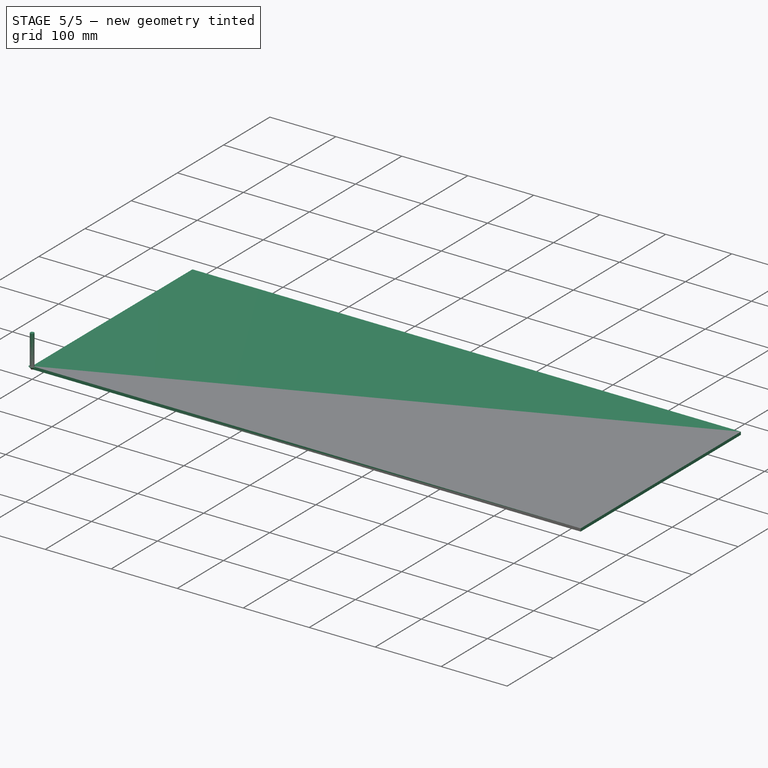
[diagram: stage 5 of 5 — iso view after this stage's code; geometry added in this stage tinted green]
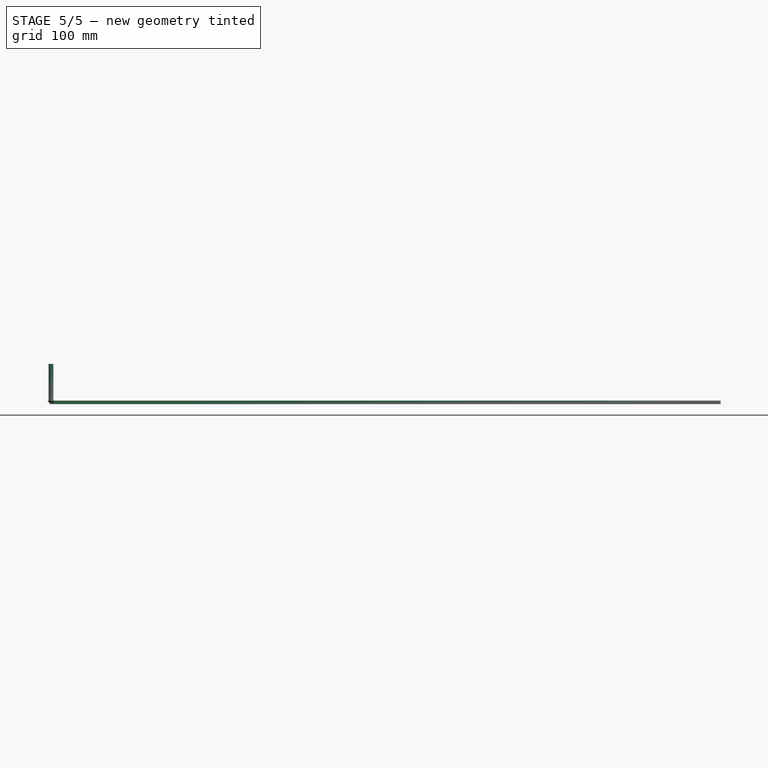
[diagram: stage 5 of 5 — front view after this stage's code; geometry added in this stage tinted green]
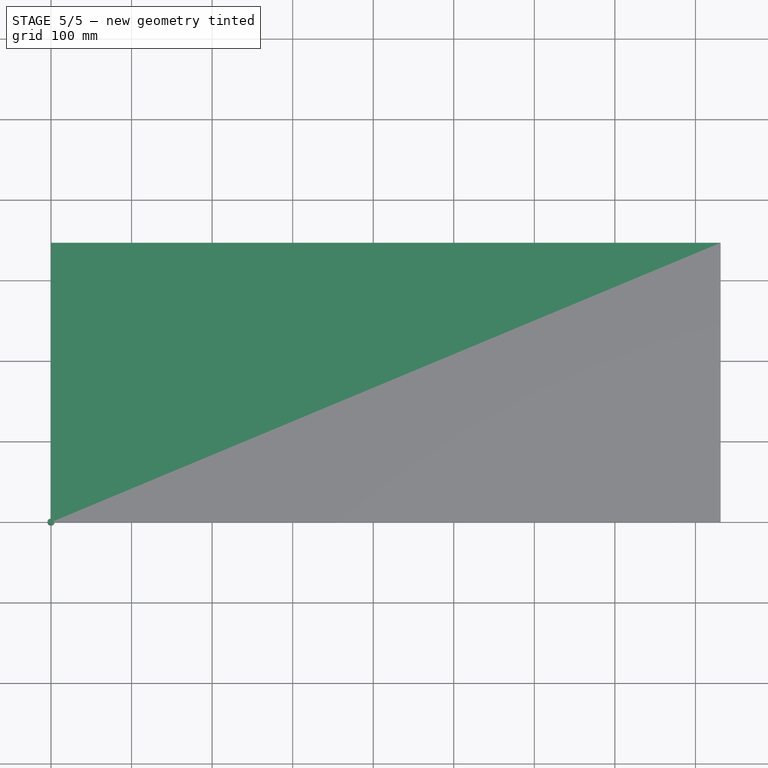
[diagram: stage 5 of 5 — top view after this stage's code; geometry added in this stage tinted green]
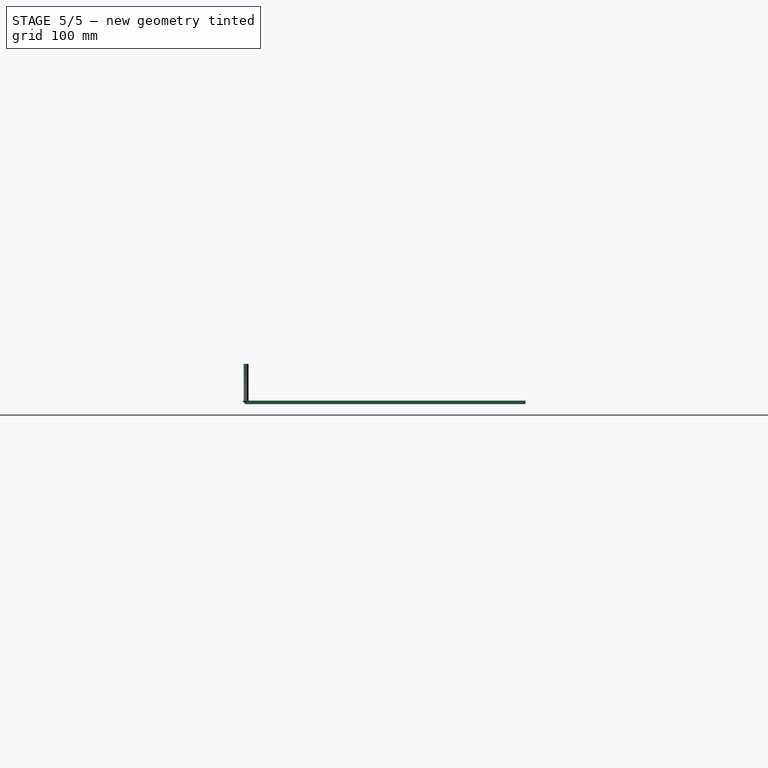
[diagram: stage 5 of 5 — right view after this stage's code; geometry added in this stage tinted green]
FEATURE [PartDesign::Body] Body001
  Group = -> [Sketch008,Binder,Pad,Pocket006,Mirrored001]
  Origin = -> Origin001
  Tip = -> Mirrored001
FEATURE [Part::Feature] Unfold
  shape: bbox 445.9 x 240 x 0.302 mm, 48 faces (baked)
FEATURE [Sketcher::SketchObject] Unfold_Sketch
  FullyConstrained = false
  sketch-geometry (46):
    g0: ArcOfCircle CenterX=199.993 CenterY=202.96 CenterZ=0 NormalX=0 NormalY=0 NormalZ=1 AngleXU=1.5708 Radius=20 StartAngle=4.71239 EndAngle=6.28319
    g1: ArcOfCircle CenterX=199.993 CenterY=-202.96 CenterZ=0 NormalX=0 NormalY=0 NormalZ=1 AngleXU=-1.5708 Radius=20 StartAngle=0 EndAngle=1.57079
    g2: LineSegment StartX=-11.3053 StartY=-38.4989 StartZ=0 EndX=-0.4 EndY=-37.0632 EndZ=0
    g3: ArcOfCircle CenterX=-10 CenterY=-48.4134 CenterZ=0 NormalX=0 NormalY=0 NormalZ=1 AngleXU=0.261799 Radius=10 StartAngle=1.4399 EndAngle=2.87979
    g4: LineSegment StartX=-20 StartY=-48.4134 StartZ=0 EndX=-20 EndY=-212.96 EndZ=0
    g5: ArcOfCircle CenterX=-10 CenterY=-212.96 CenterZ=0 NormalX=0 NormalY=0 NormalZ=1 AngleXU=1.8326 Radius=10 StartAngle=1.309 EndAngle=2.87979
    g6: LineSegment StartX=-0.4 StartY=-37.0128 StartZ=0 EndX=-0.4 EndY=-37.0632 EndZ=0
    g7: LineSegment StartX=-0.00730092 StartY=-37.0128 StartZ=0 EndX=-0.4 EndY=-37.0128 EndZ=0
    g8: LineSegment StartX=-0.00730092 StartY=-37.0128 StartZ=0 EndX=-0.00730092 EndY=-36.9473 EndZ=0
    g9: LineSegment StartX=-0.4 StartY=-36.9473 StartZ=0 EndX=-0.00730092 EndY=-36.9473 EndZ=0
    g10: LineSegment StartX=-0.4 StartY=-36.8969 StartZ=0 EndX=-0.4 EndY=-36.9473 EndZ=0
    g11: LineSegment StartX=-0.4 StartY=-36.8969 StartZ=0 EndX=-11.3053 EndY=-35.4612 EndZ=0
    g12: ArcOfCircle CenterX=-10 CenterY=-25.5468 CenterZ=0 NormalX=0 NormalY=0 NormalZ=1 AngleXU=3.14159 Radius=10 StartAngle=0 EndAngle=1.4399
    g13: LineSegment StartX=-20 StartY=25.5468 StartZ=0 EndX=-20 EndY=-25.5468 EndZ=0
    g14: ArcOfCircle CenterX=-10 CenterY=25.5468 CenterZ=0 NormalX=0 NormalY=0 NormalZ=1 AngleXU=3.14159 Radius=10 StartAngle=4.84329 EndAngle=6.28319
    g15: LineSegment StartX=-0.4 StartY=36.8969 StartZ=0 EndX=-11.3053 EndY=35.4612 EndZ=0
    g16: LineSegment StartX=-20 StartY=48.4134 StartZ=0 EndX=-20 EndY=212.96 EndZ=0
    g17: ArcOfCircle CenterX=-10 CenterY=48.4134 CenterZ=0 NormalX=0 NormalY=0 NormalZ=1 AngleXU=-0.261799 Radius=10 StartAngle=3.40339 EndAngle=4.84329
    g18: ArcOfCircle CenterX=-10 CenterY=212.96 CenterZ=0 NormalX=0 NormalY=0 NormalZ=1 AngleXU=-1.8326 Radius=10 StartAngle=3.40339 EndAngle=4.97419
    g19: LineSegment StartX=-11.3053 StartY=38.4989 StartZ=0 EndX=-0.4 EndY=37.0632 EndZ=0
    g20: LineSegment StartX=-0.4 StartY=37.0128 StartZ=0 EndX=-0.4 EndY=37.0632 EndZ=0
    g21: LineSegment StartX=-0.00730092 StartY=37.0128 StartZ=0 EndX=-0.4 EndY=37.0128 EndZ=0
    g22: LineSegment StartX=-0.00730092 StartY=36.9473 StartZ=0 EndX=-0.00730092 EndY=37.0128 EndZ=0
    g23: LineSegment StartX=-0.00730092 StartY=36.9473 StartZ=0 EndX=-0.4 EndY=36.9473 EndZ=0
    g24: LineSegment StartX=-0.4 StartY=36.9473 StartZ=0 EndX=-0.4 EndY=36.8969 EndZ=0
    g25: Circle CenterX=189.993 CenterY=-185.96 CenterZ=0 NormalX=0 NormalY=0 NormalZ=1 AngleXU=-1.5708 Radius=3
    g26: Circle CenterX=189.993 CenterY=-135.96 CenterZ=0 NormalX=0 NormalY=0 NormalZ=1 AngleXU=-1.5708 Radius=3
    g27: Circle CenterX=189.993 CenterY=73.9601 CenterZ=0 NormalX=0 NormalY=0 NormalZ=1 AngleXU=1.5708 Radius=3
    g28: Circle CenterX=189.993 CenterY=123.96 CenterZ=0 NormalX=0 NormalY=0 NormalZ=1 AngleXU=1.5708 Radius=3
    g29: Circle CenterX=189.993 CenterY=135.96 CenterZ=0 NormalX=0 NormalY=0 NormalZ=1 AngleXU=1.5708 Radius=3
    g30: Circle CenterX=189.993 CenterY=185.96 CenterZ=0 NormalX=0 NormalY=0 NormalZ=1 AngleXU=1.5708 Radius=3
    g31: Circle CenterX=189.993 CenterY=25 CenterZ=0 NormalX=0 NormalY=0 NormalZ=1 AngleXU=1.5708 Radius=3
    g32: Circle CenterX=189.993 CenterY=-25 CenterZ=0 NormalX=0 NormalY=0 NormalZ=1 AngleXU=-1.5708 Radius=3
    g33: Circle CenterX=189.993 CenterY=-123.96 CenterZ=0 NormalX=0 NormalY=0 NormalZ=1 AngleXU=-1.5708 Radius=3
    g34: Circle CenterX=189.993 CenterY=-73.9601 CenterZ=0 NormalX=0 NormalY=0 NormalZ=1 AngleXU=-1.5708 Radius=3
    g35: Circle CenterX=-10 CenterY=-49.4601 CenterZ=0 NormalX=0 NormalY=0 NormalZ=1 AngleXU=1.5708 Radius=1.7
    g36: Circle CenterX=-10 CenterY=49.4601 CenterZ=0 NormalX=0 NormalY=0 NormalZ=1 AngleXU=-1.5708 Radius=1.7
    g37: Circle CenterX=-10 CenterY=20 CenterZ=0 NormalX=0 NormalY=0 NormalZ=1 AngleXU=1.5708 Radius=1.7
    g38: Circle CenterX=-10 CenterY=-20 CenterZ=0 NormalX=0 NormalY=0 NormalZ=1 AngleXU=1.5708 Radius=1.7
    g39: Circle CenterX=-10 CenterY=210.46 CenterZ=0 NormalX=0 NormalY=0 NormalZ=1 AngleXU=-1.5708 Radius=1.7
    g40: Circle CenterX=-10 CenterY=129.96 CenterZ=0 NormalX=0 NormalY=0 NormalZ=1 AngleXU=-1.5708 Radius=1.7
    g41: Circle CenterX=-10 CenterY=-210.46 CenterZ=0 NormalX=0 NormalY=0 NormalZ=1 AngleXU=1.5708 Radius=1.7
    g42: Circle CenterX=-10 CenterY=-129.96 CenterZ=0 NormalX=0 NormalY=0 NormalZ=1 AngleXU=1.5708 Radius=1.7
    g43: LineSegment StartX=-10 StartY=-222.96 StartZ=0 EndX=199.993 EndY=-222.96 EndZ=0
    g44: LineSegment StartX=219.993 StartY=202.96 StartZ=0 EndX=219.993 EndY=-202.96 EndZ=0
    g45: LineSegment StartX=-10 StartY=222.96 StartZ=0 EndX=199.993 EndY=222.96 EndZ=0
FEATURE [Sketcher::SketchObject] Unfold_Sketch_Outline
  FullyConstrained = false
  sketch-geometry (28):
    g0: ArcOfCircle CenterX=-10 CenterY=-48.4134 CenterZ=0 NormalX=0 NormalY=0 NormalZ=1 AngleXU=0.261799 Radius=10 StartAngle=1.4399 EndAngle=2.87979
    g1: LineSegment StartX=-20 StartY=-48.4134 StartZ=0 EndX=-20 EndY=-212.96 EndZ=0
    g2: ArcOfCircle CenterX=-10 CenterY=-212.96 CenterZ=0 NormalX=0 NormalY=0 NormalZ=1 AngleXU=1.8326 Radius=10 StartAngle=1.309 EndAngle=2.87979
    g3: LineSegment StartX=-10 StartY=-222.96 StartZ=0 EndX=199.993 EndY=-222.96 EndZ=0
    g4: ArcOfCircle CenterX=199.993 CenterY=-202.96 CenterZ=0 NormalX=0 NormalY=0 NormalZ=1 AngleXU=-1.5708 Radius=20 StartAngle=0 EndAngle=1.57079
    g5: LineSegment StartX=219.993 StartY=202.96 StartZ=0 EndX=219.993 EndY=-202.96 EndZ=0
    g6: ArcOfCircle CenterX=199.993 CenterY=202.96 CenterZ=0 NormalX=0 NormalY=0 NormalZ=1 AngleXU=1.5708 Radius=20 StartAngle=4.71239 EndAngle=6.28319
    g7: LineSegment StartX=-10 StartY=222.96 StartZ=0 EndX=199.993 EndY=222.96 EndZ=0
    g8: ArcOfCircle CenterX=-10 CenterY=212.96 CenterZ=0 NormalX=0 NormalY=0 NormalZ=1 AngleXU=-1.8326 Radius=10 StartAngle=3.40339 EndAngle=4.97419
    g9: LineSegment StartX=-20 StartY=48.4134 StartZ=0 EndX=-20 EndY=212.96 EndZ=0
    g10: ArcOfCircle CenterX=-10 CenterY=48.4134 CenterZ=0 NormalX=0 NormalY=0 NormalZ=1 AngleXU=-0.261799 Radius=10 StartAngle=3.40339 EndAngle=4.84329
    g11: LineSegment StartX=-11.3053 StartY=38.4989 StartZ=0 EndX=-0.4 EndY=37.0632 EndZ=0
    g12: LineSegment StartX=-0.4 StartY=37.0128 StartZ=0 EndX=-0.4 EndY=37.0632 EndZ=0
    g13: LineSegment StartX=-0.00730092 StartY=37.0128 StartZ=0 EndX=-0.4 EndY=37.0128 EndZ=0
    g14: LineSegment StartX=-0.00730092 StartY=36.9473 StartZ=0 EndX=-0.00730092 EndY=37.0128 EndZ=0
    g15: LineSegment StartX=-0.00730092 StartY=36.9473 StartZ=0 EndX=-0.4 EndY=36.9473 EndZ=0
    g16: LineSegment StartX=-0.4 StartY=36.9473 StartZ=0 EndX=-0.4 EndY=36.8969 EndZ=0
    g17: LineSegment StartX=-0.4 StartY=36.8969 StartZ=0 EndX=-11.3053 EndY=35.4612 EndZ=0
    g18: ArcOfCircle CenterX=-10 CenterY=25.5468 CenterZ=0 NormalX=0 NormalY=0 NormalZ=1 AngleXU=3.14159 Radius=10 StartAngle=4.84329 EndAngle=6.28319
    g19: LineSegment StartX=-20 StartY=25.5468 StartZ=0 EndX=-20 EndY=-25.5468 EndZ=0
    g20: ArcOfCircle CenterX=-10 CenterY=-25.5468 CenterZ=0 NormalX=0 NormalY=0 NormalZ=1 AngleXU=3.14159 Radius=10 StartAngle=0 EndAngle=1.4399
    g21: LineSegment StartX=-0.4 StartY=-36.8969 StartZ=0 EndX=-11.3053 EndY=-35.4612 EndZ=0
    g22: LineSegment StartX=-0.4 StartY=-36.8969 StartZ=0 EndX=-0.4 EndY=-36.9473 EndZ=0
    g23: LineSegment StartX=-0.4 StartY=-36.9473 StartZ=0 EndX=-0.00730092 EndY=-36.9473 EndZ=0
    g24: LineSegment StartX=-0.00730092 StartY=-37.0128 StartZ=0 EndX=-0.00730092 EndY=-36.9473 EndZ=0
    g25: LineSegment StartX=-0.00730092 StartY=-37.0128 StartZ=0 EndX=-0.4 EndY=-37.0128 EndZ=0
    g26: LineSegment StartX=-0.4 StartY=-37.0128 StartZ=0 EndX=-0.4 EndY=-37.0632 EndZ=0
    g27: LineSegment StartX=-11.3053 StartY=-38.4989 StartZ=0 EndX=-0.4 EndY=-37.0632 EndZ=0
FEATURE [Sketcher::SketchObject] Unfold_Sketch_Internal
  FullyConstrained = false
  sketch-geometry (18):
    g0: Circle CenterX=189.993 CenterY=-73.9601 CenterZ=0 NormalX=0 NormalY=0 NormalZ=1 AngleXU=-1.5708 Radius=3
    g1: Circle CenterX=189.993 CenterY=-123.96 CenterZ=0 NormalX=0 NormalY=0 NormalZ=1 AngleXU=-1.5708 Radius=3
    g2: Circle CenterX=189.993 CenterY=-25 CenterZ=0 NormalX=0 NormalY=0 NormalZ=1 AngleXU=-1.5708 Radius=3
    g3: Circle CenterX=189.993 CenterY=25 CenterZ=0 NormalX=0 NormalY=0 NormalZ=1 AngleXU=1.5708 Radius=3
    g4: Circle CenterX=189.993 CenterY=185.96 CenterZ=0 NormalX=0 NormalY=0 NormalZ=1 AngleXU=1.5708 Radius=3
    g5: Circle CenterX=189.993 CenterY=135.96 CenterZ=0 NormalX=0 NormalY=0 NormalZ=1 AngleXU=1.5708 Radius=3
    g6: Circle CenterX=189.993 CenterY=123.96 CenterZ=0 NormalX=0 NormalY=0 NormalZ=1 AngleXU=1.5708 Radius=3
    g7: Circle CenterX=189.993 CenterY=73.9601 CenterZ=0 NormalX=0 NormalY=0 NormalZ=1 AngleXU=1.5708 Radius=3
    g8: Circle CenterX=189.993 CenterY=-135.96 CenterZ=0 NormalX=0 NormalY=0 NormalZ=1 AngleXU=-1.5708 Radius=3
    g9: Circle CenterX=189.993 CenterY=-185.96 CenterZ=0 NormalX=0 NormalY=0 NormalZ=1 AngleXU=-1.5708 Radius=3
    g10: Circle CenterX=-10 CenterY=49.4601 CenterZ=0 NormalX=0 NormalY=0 NormalZ=1 AngleXU=-1.5708 Radius=1.7
    g11: Circle CenterX=-10 CenterY=-49.4601 CenterZ=0 NormalX=0 NormalY=0 NormalZ=1 AngleXU=1.5708 Radius=1.7
    g12: Circle CenterX=-10 CenterY=-20 CenterZ=0 NormalX=0 NormalY=0 NormalZ=1 AngleXU=1.5708 Radius=1.7
    g13: Circle CenterX=-10 CenterY=20 CenterZ=0 NormalX=0 NormalY=0 NormalZ=1 AngleXU=1.5708 Radius=1.7
    g14: Circle CenterX=-10 CenterY=-129.96 CenterZ=0 NormalX=0 NormalY=0 NormalZ=1 AngleXU=1.5708 Radius=1.7
    g15: Circle CenterX=-10 CenterY=-210.46 CenterZ=0 NormalX=0 NormalY=0 NormalZ=1 AngleXU=1.5708 Radius=1.7
    g16: Circle CenterX=-10 CenterY=129.96 CenterZ=0 NormalX=0 NormalY=0 NormalZ=1 AngleXU=-1.5708 Radius=1.7
    g17: Circle CenterX=-10 CenterY=210.46 CenterZ=0 NormalX=0 NormalY=0 NormalZ=1 AngleXU=-1.5708 Radius=1.7
FEATURE [Sketcher::SketchObject] Unfold_Sketch_bends
  FullyConstrained = false
  sketch-geometry (5):
    g0: LineSegment StartX=-0.20365 StartY=37.0128 StartZ=0 EndX=-0.20365 EndY=222.96 EndZ=0
    g1: LineSegment StartX=219.993 StartY=36.9801 StartZ=0 EndX=-0.00730092 EndY=36.9801 EndZ=0
    g2: LineSegment StartX=-0.20365 StartY=-37.0128 StartZ=0 EndX=-0.20365 EndY=-222.96 EndZ=0
    g3: LineSegment StartX=219.993 StartY=-36.9801 StartZ=0 EndX=-0.00730092 EndY=-36.9801 EndZ=0
    g4: LineSegment StartX=-0.20365 StartY=36.9473 StartZ=0 EndX=-0.20365 EndY=-36.9473 EndZ=0
FEATURE [App::FeaturePython] SetupSheet  # Path/CAM operation (typed FeaturePython)
  ClearanceHeightExpression = OpStockZMax+SetupSheet.ClearanceHeightOffset
  ClearanceHeightOffset = 5
  CoolantMode = 0
  CoolantModes = None | Flood | Mist
  DeburrExtraDepth = 0
  DeburrWidth = 2.7
  FinalDepthExpression = 0.6 mm
  HorizRapid = 0
  ProfileDirection = 1
  ProfileprocessCircles = true
  ProfileprocessHoles = true
  ProfileprocessPerimeter = true
  SafeHeightExpression = OpStockZMax+SetupSheet.SafeHeightOffset
  SafeHeightOffset = 3
  StartDepthExpression = 3 mm
  StepDownExpression = OpToolDiameter
  VertRapid = 0
FEATURE [Part::FeaturePython] ToolBit  label="NZV6109015"  # Path/CAM toolbit (typed FeaturePython)
  BitPropertyNames = Chipload | CuttingEdgeAngle | CuttingEdgeHeight | Diameter | Flutes | Length | Material | ShankDiameter | TipDiameter
  BitShape = <path>
  Chipload = 0
  CuttingEdgeAngle = 90
  CuttingEdgeHeight = 4
  Diameter = 10
  Flutes = 0
  Length = 50
  Material = 0
  ShankDiameter = 6
  ShapeName = chamfer
  TipDiameter = 1
FEATURE [PartDesign::Body] Body002
  BaseFeature = -> Unfold002
  Group = -> [BaseFeature]
  Origin = -> Origin002
  Tip = -> BaseFeature
FEATURE [Part::FeaturePython] Clone  label="Model-Body002"  # Draft clone (typed FeaturePython)
  AttacherType = Attacher::AttachEngine3D
  Fuse = false
  Objects = -> [Body002]
  PathResource = Model
  Placement = pos=(219.993,172.96,0.4) rot=(0,0,1;0rad)
  Scale = (1,1,1)
FEATURE [App::DocumentObjectGroup] Model001
  Group = -> [Clone,Clone001,Clone002,Clone003]
FEATURE [Part::FeaturePython] Stock001  # WARN: FeaturePython — macro-defined, semantics opaque (R4)
  Base = -> Model001
  ExtXneg = 0
  ExtXpos = 1
  ExtYneg = 0
  ExtYpos = 1
  ExtZneg = 0
  ExtZpos = 1
  StockType = FromBase
FEATURE [Path::FeaturePython] Profile  # Path/CAM operation (typed FeaturePython)
  Active = true
  AreaParams:
    Tolerance = 1e-07
    FitArcs = True
    Simplify = False
    CleanDistance = 0.0
    Accuracy = 0.01
    Unit = 1.0
    MinArcPoints = 4
    MaxArcPoints = 100
    ClipperScale = 10000000.0
    Fill = 0
    Coplanar = 0
    Reorient = True
    Outline = False
    Explode = False
    OpenMode = 0
    Deflection = 0.01
    SubjectFill = 0
    ClipFill = 0
    Offset = -1.585
    ExtraPass = 0
    Stepover = 0.0
    LastStepover = 0.0
    JoinType = 0
    EndType = 0
    MiterLimit = 2.0
    RoundPrecision = 0.0
    PocketMode = 0
    ToolRadius = 1.0
    PocketExtraOffset = 0.0
    PocketStepover = 0.0
    PocketLastStepover = 0.0
    FromCenter = False
    Angle = 45.0
    AngleShift = 0.0
    Shift = 0.0
    Thicken = False
    SectionCount = -1
    Stepdown = 1.0
    SectionOffset = 0.0
    SectionTolerance = 1e-07
    SectionMode = 2
    Project = False
  Base = -> [Clone,Clone003,Clone001,Clone002]
  ClearanceHeight = 9.4
  CoolantMode = 0
  CycleTime = 00:03:37
  Direction = 1
  FinalDepth = -0.1
  HandleMultipleFeatures = 0
  JoinType = 0
  MiterLimit = 0.1
  OffsetExtra = 0
  OpFinalDepth = 0
  OpStartDepth = 4.4
  OpStockZMax = 4.4
  OpStockZMin = 0
  OpToolDiameter = 3.17
  PathParams = {'orientation': 1, 'feedrate': 33.333333333333336, 'feedrate_v': 8.333333333333334, 'verbose': True, 'resume_height': 7.400000000000123, 'retraction': 9.400000000000123, 'return_end': True, 'preamble': False, 'start': Vector (659.7296796457197, 322.07358089937844, 9.400000000000123)}
  SafeHeight = 7.4
  Side = 0
  SplitArcs = false
  StartDepth = 3
  StartPoint = (0,0,0)
  StepDown = 4
  ToolController = -> __175mm_Endmill
  UseComp = true
  UseStartPoint = false
  processCircles = true
  processHoles = true
  processPerimeter = false
  expr: ClearanceHeight = OpStockZMax + SetupSheet001.ClearanceHeightOffset
  expr: FinalDepth = -0.1mm
  expr: SafeHeight = OpStockZMax + SetupSheet001.SafeHeightOffset
  expr: StartDepth = 3mm
  expr: StepDown = 4mm
FEATURE [App::DocumentObjectGroup] Operations001
  Group = -> [Profile,DressupDogbone]
FEATURE [Path::FeaturePython] Job001  # Path/CAM operation (typed FeaturePython)
  CycleTime = 00:06:11
  Fixtures = G54
  GeometryTolerance = 0.01
  JobType = 0
  LastPostProcessDate = 2023-01-31 15:11:10.846010
  LastPostProcessOutput = <userpath>/2411-26D9/Unnamed1.Job001-0.tap \n<userpath>/2411-26D9/Unnamed1.Job001-1.tap
  Model = -> Model001
  Operations = -> Operations001
  OrderOutputBy = 2
  PostProcessor = 1
  PostProcessorOutputFile = %d.%j.tap
  SetupSheet = -> SetupSheet001
  SplitOutput = true
  Stock = -> Stock001
  Tools = -> Tools001
FEATURE [Part::Part2DObjectPython] Clone2D001  label="Model-Unfold_Sketch_bends002"  # Draft 2D object (typed FeaturePython)
  Fuse = false
  Objects = -> [Unfold_Sketch_bends002]
  PathResource = Model
  Placement = pos=(464,172.96,0) rot=(0,0,1;0rad)
  Scale = (1,1,1)
  expr: Placement = <<Model-Body004>>.Placement
FEATURE [App::DocumentObjectGroup] Model
  Group = -> [Clone2D,Clone2D001]
FEATURE [Part::FeaturePython] Stock  # WARN: FeaturePython — macro-defined, semantics opaque (R4)
  Base = -> Model
  ExtXneg = 0
  ExtXpos = 1
  ExtYneg = 0
  ExtYpos = 1
  ExtZneg = 0
  ExtZpos = 1
  StockType = FromBase
FEATURE [Path::FeaturePython] Job  # Path/CAM operation (typed FeaturePython)
  CycleTime = 00:01:16
  Fixtures = G54
  GeometryTolerance = 0.01
  JobType = 0
  LastPostProcessDate = 2023-01-31 15:10:44.814045
  LastPostProcessOutput = <userpath>/2411-26D9/Unnamed1.Job.tap
  Model = -> Model
  Operations = -> Operations
  OrderOutputBy = 0
  PostProcessor = 1
  PostProcessorOutputFile = %d.%j.tap
  SetupSheet = -> SetupSheet
  SplitOutput = false
  Stock = -> Stock
  Tools = -> Tools
note: 2 file-system paths scrubbed to <path> (originals preserved in the JSON sidecar)
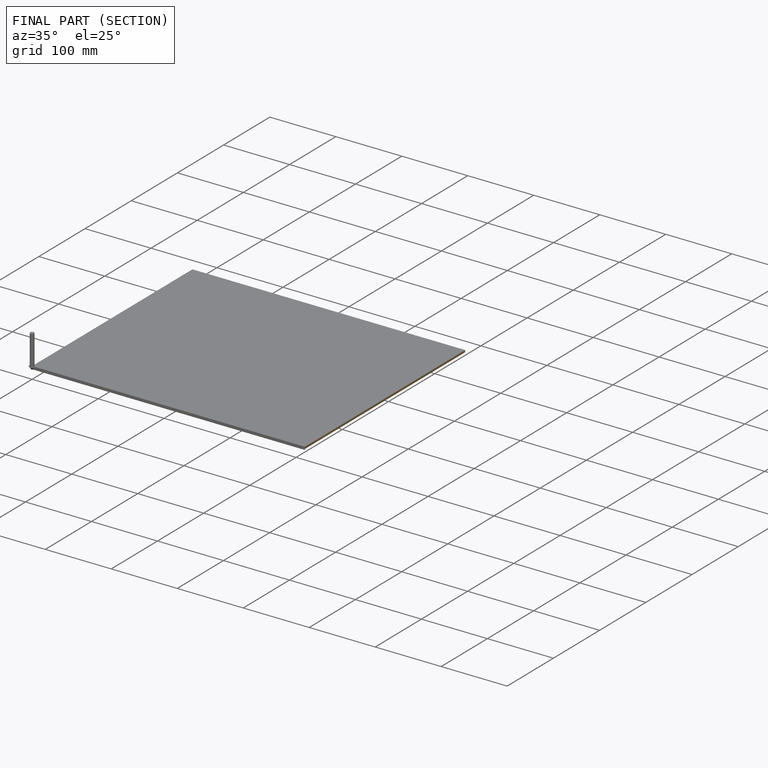
[diagram: finished part — half-section view (interior)]
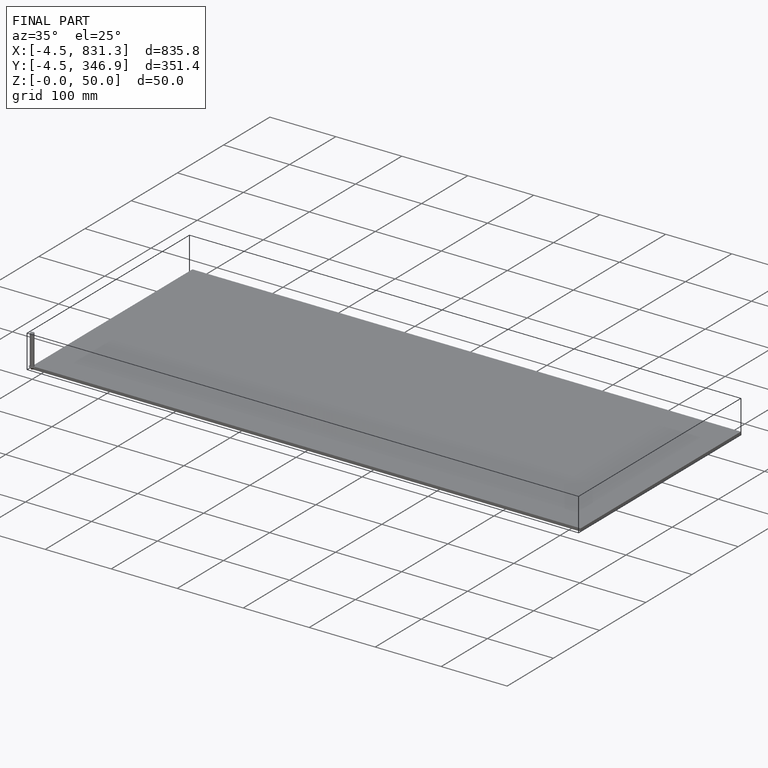
[diagram: finished part — iso view with bounding-box wireframe]
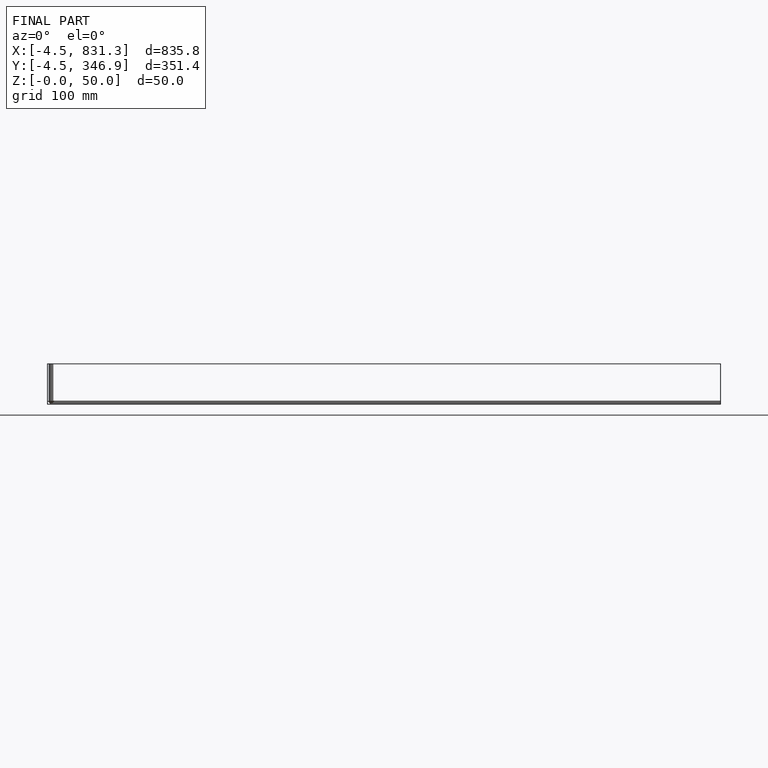
[diagram: finished part — front view with bounding-box wireframe]
